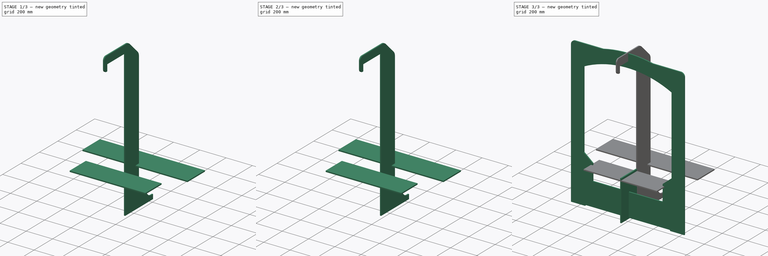
[diagram: build sequence overview — one tinted view per stage of 3, left to right]
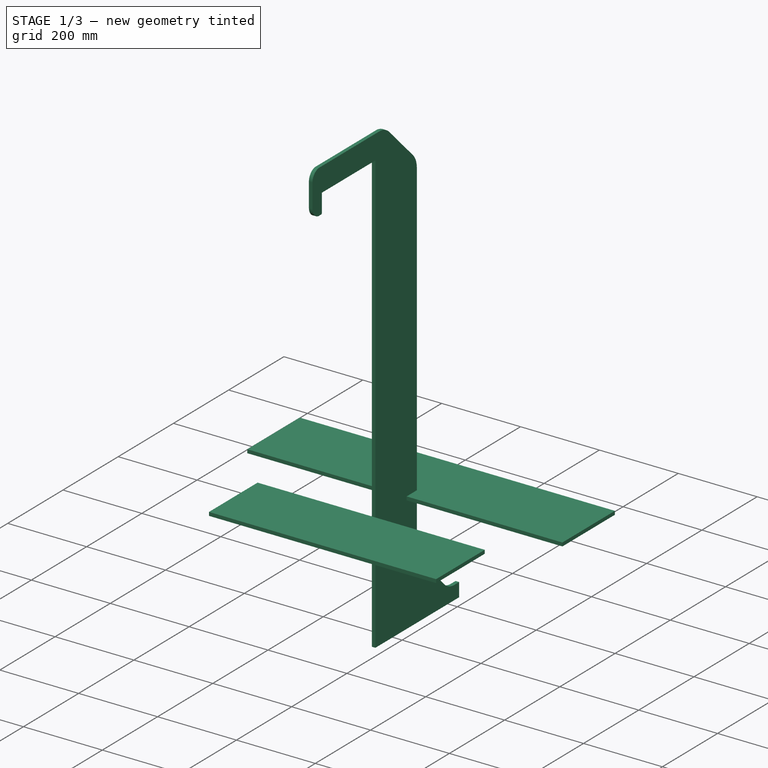
[diagram: stage 1 of 3 — iso view after this stage's code; geometry added in this stage tinted green]
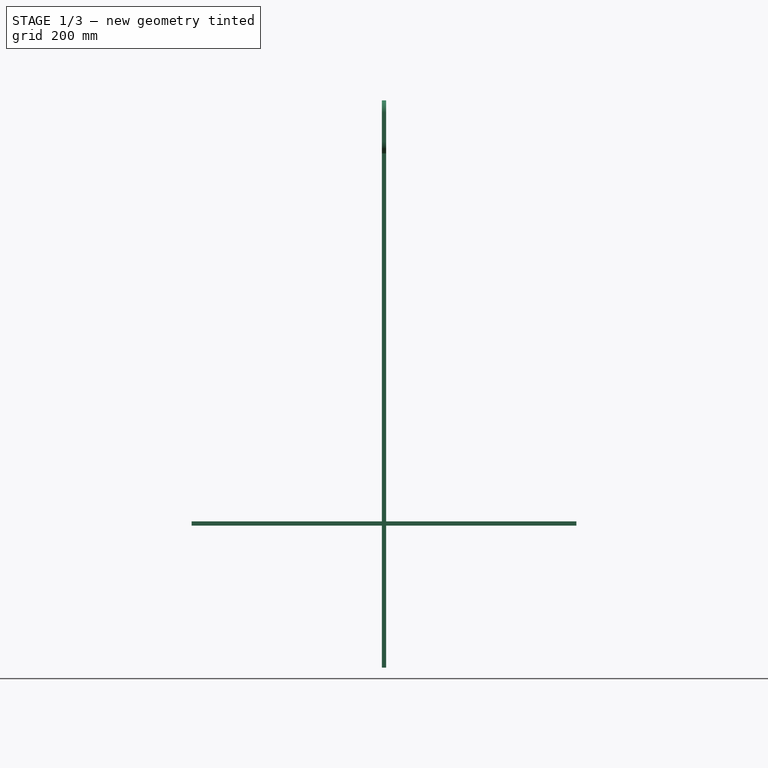
[diagram: stage 1 of 3 — front view after this stage's code; geometry added in this stage tinted green]
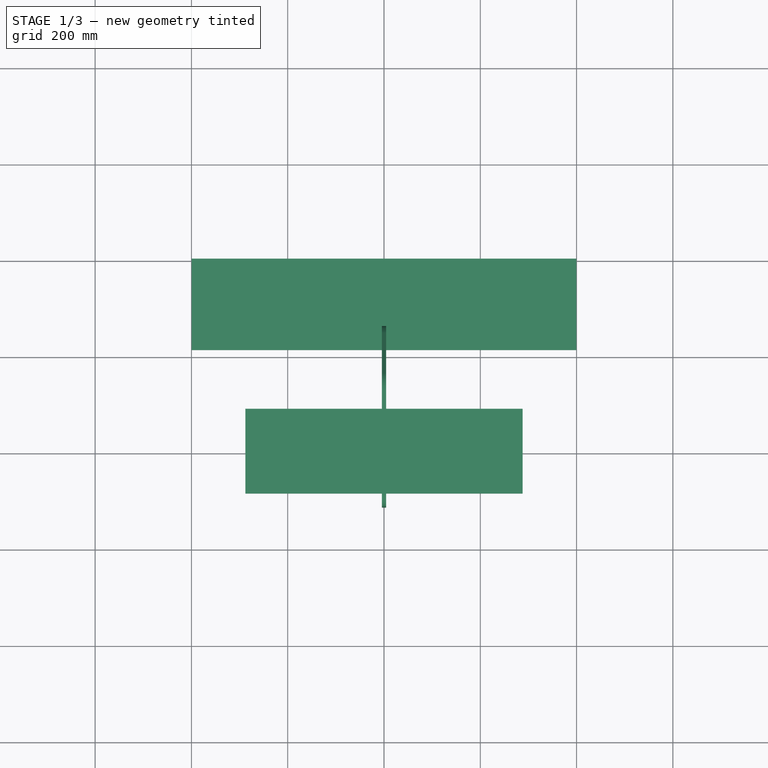
[diagram: stage 1 of 3 — top view after this stage's code; geometry added in this stage tinted green]
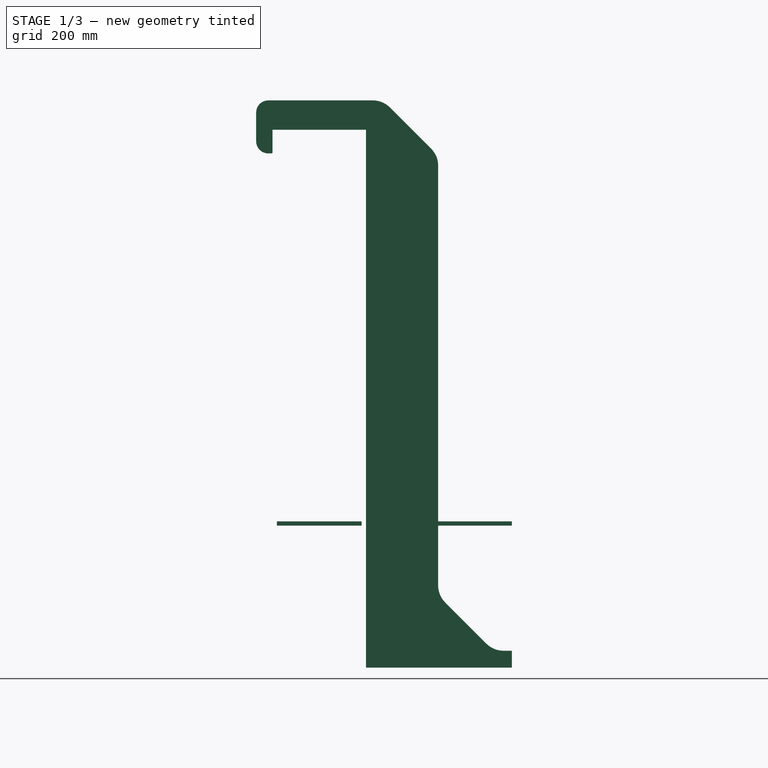
[diagram: stage 1 of 3 — right view after this stage's code; geometry added in this stage tinted green]
FCSTD DOCUMENT  (FreeCAD 0.19R)
Label: Main_Assembly
License: Creative Commons Attribution-ShareAlike
LicenseURL: http://creativecommons.org/licenses/by-sa/4.0/
objects: App::Link×14, PartDesign::CoordinateSystem×10, Sketcher::SketchObject×9, PartDesign::Pad×8, PartDesign::Body×8, App::DocumentObjectGroup×2, App::FeaturePython×1, Spreadsheet::Sheet×1, App::Part×1
note: 43 computed .brp shape members not serialized (recipe doc carries the construction recipe); baked Part::Feature solids carry a one-line shape summary decoded from their .brp
EXTERNAL_REF file=key_dimensions.FCStd obj=Spreadsheet
EXTERNAL_REF file=Cradle/Base_Assembly.FCStd obj=LCS_Origin
EXTERNAL_REF file=Cradle/Base_Assembly.FCStd obj=Model
EXTERNAL_REF file=Cradle/Swivel_Assembly.FCStd obj=LCS_Origin
EXTERNAL_REF file=Cradle/Swivel_Assembly.FCStd obj=Model
EXTERNAL_REF file=Cradle/Wing_Assembly_right.FCStd obj=LCS_Origin
EXTERNAL_REF file=Cradle/Wing_Assembly_right.FCStd obj=Model
EXTERNAL_REF file=Cradle/Wing_Assembly_left.FCStd obj=LCS_Origin
EXTERNAL_REF file=Cradle/Wing_Assembly_left.FCStd obj=Model

FEATURE [PartDesign::Body] Column_right
  Group = -> [LCS_0003,Sketch005,Pad004]
  Origin = -> Origin005
  Tip = -> Pad004
FEATURE [App::Link] Column_right001
  AssemblyType = Asm4EE
  AttachedBy = #LCS_0003
  AttachedTo = Parent Assembly#LCS_Origin
  AttachmentOffset = pos=(395,0,0) rot=(0,0,1;0rad)
  LinkPlacement = pos=(395,0,0) rot=(0,0,1;0rad)
  LinkedObject = -> Column_right
  Placement = pos=(395,0,0) rot=(0,0,1;0rad)
  expr: .Placement.Base.x = <<key_dimensions>>#<<Dimensions>>.window_width / 2 + <<key_dimensions>>#<<Dimensions>>.frame_width / 2
FEATURE [PartDesign::CoordinateSystem] LCS_0004
  AttacherType = Attacher::AttachEngine3D
  MapMode = 2
  Support = -> [X_Axis006]
FEATURE [Sketcher::SketchObject] Sketch006  label="Column_left_Sketch"
  FullyConstrained = true
  MapMode = 5
  Placement = pos=(0,0,0) rot=(0.57735,0.57735,0.57735;2.0944rad)
  Support = -> [YZ_Plane006]
  expr: Constraints[56] = <<Column_right_Sketch>>.Constraints.front_height
  expr: Constraints[50] = <<Column_right_Sketch>>.Constraints.radius_small
  expr: Constraints[34] = <<Column_right_Sketch>>.Constraints.radius_big
  expr: Constraints[45] = <<Column_right_Sketch>>.Constraints.oblique_length
  expr: Constraints[20] = <<Column_right_Sketch>>.Constraints.column_width
  expr: Constraints[65] = <<key_dimensions>>#<<Dimensions>>.rear_overhang
  expr: Constraints[23] = <<key_dimensions>>#<<Dimensions>>.center_height
  expr: Constraints[26] = <<key_dimensions>>#<<Dimensions>>.top_height - 33
  expr: Constraints[60] = <<key_dimensions>>#<<Dimensions>>.frame_depth / 2 + <<key_dimensions>>#<<Dimensions>>.MDF_thick
  expr: Constraints[25] = <<Dimensions>>.foot_height
  expr: Constraints[21] = <<key_dimensions>>#<<Dimensions>>.frame_depth / 2 + <<key_dimensions>>#<<Dimensions>>.MDF_thick
  sketch-geometry (23):
    g0: LineSegment StartX=97 StartY=-299.25 StartZ=0 EndX=97 EndY=817.75 EndZ=0
    g1: LineSegment StartX=97 StartY=817.75 StartZ=0 EndX=-97 EndY=817.75 EndZ=0
    g2: LineSegment StartX=-97 StartY=817.75 StartZ=0 EndX=-97 EndY=770.75 EndZ=0
    g3: LineSegment StartX=-99 StartY=768.75 StartZ=0 EndX=-106 EndY=768.75 EndZ=0
    g4: LineSegment StartX=-131 StartY=793.75 StartZ=0 EndX=-131 EndY=853.75 EndZ=0
    g5: LineSegment StartX=-106 StartY=878.75 StartZ=0 EndX=111.44 EndY=878.75 EndZ=0
    g6: LineSegment StartX=146.795 StartY=864.105 StartZ=0 EndX=232.355 EndY=778.545 EndZ=0
    g7: LineSegment StartX=247 StartY=743.19 StartZ=0 EndX=247 EndY=-128.69 EndZ=0
    g8: LineSegment StartX=261.645 StartY=-164.045 StartZ=0 EndX=347.205 EndY=-249.605 EndZ=0
    g9: LineSegment StartX=382.56 StartY=-264.25 StartZ=0 EndX=400 EndY=-264.25 EndZ=0
    g10: LineSegment StartX=400 StartY=-264.25 StartZ=0 EndX=400 EndY=-299.25 EndZ=0
    g11: LineSegment StartX=400 StartY=-299.25 StartZ=0 EndX=97 EndY=-299.25 EndZ=0
    g12: LineSegment StartX=97 StartY=0 StartZ=0 EndX=247 EndY=0 EndZ=0
    g13: ArcOfCircle CenterX=111.44 CenterY=828.75 CenterZ=0 NormalX=0 NormalY=0 NormalZ=1 AngleXU=0 Radius=50 StartAngle=0.785398 EndAngle=1.5708
    g14: ArcOfCircle CenterX=197 CenterY=743.19 CenterZ=0 NormalX=0 NormalY=0 NormalZ=1 AngleXU=0 Radius=50 StartAngle=-9e-16 EndAngle=0.785398
    g15: ArcOfCircle CenterX=297 CenterY=-128.69 CenterZ=0 NormalX=0 NormalY=0 NormalZ=1 AngleXU=0 Radius=50 StartAngle=3.14159 EndAngle=3.92699
    g16: ArcOfCircle CenterX=382.56 CenterY=-214.25 CenterZ=0 NormalX=0 NormalY=0 NormalZ=1 AngleXU=0 Radius=50 StartAngle=3.92699 EndAngle=4.71239
    g17: LineSegment StartX=0 StartY=878.75 StartZ=0 EndX=0 EndY=817.75 EndZ=0
    g18: ArcOfCircle CenterX=-106 CenterY=853.75 CenterZ=0 NormalX=0 NormalY=0 NormalZ=1 AngleXU=0 Radius=25 StartAngle=1.5708 EndAngle=3.14159
    g19: ArcOfCircle CenterX=-106 CenterY=793.75 CenterZ=0 NormalX=0 NormalY=0 NormalZ=1 AngleXU=0 Radius=25 StartAngle=3.14159 EndAngle=4.71239
    g20: LineSegment StartX=-131 StartY=817.75 StartZ=0 EndX=-97 EndY=817.75 EndZ=0
    g21: LineSegment StartX=-97 StartY=793.75 StartZ=0 EndX=0 EndY=793.75 EndZ=0
    g22: ArcOfCircle CenterX=-99 CenterY=770.75 CenterZ=0 NormalX=0 NormalY=0 NormalZ=1 AngleXU=0 Radius=2 StartAngle=4.71239 EndAngle=6.28319
  constraints (66):
    c: Vertical(g0)
    c: Coincident(g0,g1)
    c: Horizontal(g1)
    c: Coincident(g1,g2)
    c: Vertical(g2)
    c: Horizontal(g3)
    c: Vertical(g4)
    c: Horizontal(g5)
    c: Vertical(g7)
    c: Coincident(g9,g10)
    c: Vertical(g10)
    c: Coincident(g10,g11)
    c: Coincident(g11,g0)
    c: Horizontal(g11)
    c: Horizontal(g9)
    c: Parallel(g6,g8)
    c: Angle(g6) = -0.785398
    c: PointOnObject(g12,g0)
    c: PointOnObject(g12,g7)
    c: Horizontal(g12)
    c: DistanceX(g12,g12) = 150
    c: DistanceX(g-1,g12) = 97
    c: PointOnObject(g12,g-1)
    c: DistanceY(g0,g-1) = 299.25
    c: DistanceX(g11,g11) = 303
    c: DistanceY(g10,g10) = 35
    c: DistanceY(g0,g0) = 1117
    c: Equal(g8,g6)
    c: Tangent(g5,g13) = 1.5708
    c: Tangent(g6,g13) = 1.5708
    c: Tangent(g6,g14) = 1.5708
    c: Tangent(g7,g14) = 1.5708
    c: Tangent(g7,g15) = -1.5708
    c: Tangent(g8,g15) = -1.5708
    c: Radius(g14) = 50
    c: Equal(g13,g14)
    c: Equal(g15,g14)
    c: Tangent(g8,g16) = -1.5708
    c: Tangent(g9,g16) = -1.5708
    c: Equal(g16,g15)
    c: PointOnObject(g17,g5)
    c: PointOnObject(g17,g1)
    c: Vertical(g17)
    c: DistanceY(g17,g17) = 61
    c: PointOnObject(g17,g-2)
    c: Distance(g6) = 121
    c: Tangent(g5,g18) = 1.5708
    c: Tangent(g4,g18) = 1.5708
    c: Tangent(g4,g19) = 1.5708
    c: Tangent(g3,g19) = 1.5708
    c: Radius(g19) = 25
    c: Equal(g18,g19)
    c: PointOnObject(g20,g4)
    c: Coincident(g20,g1)
    c: Horizontal(g20)
    c: DistanceX(g20,g20) = 34
    c: DistanceY(g3,g5) = 110
    c: PointOnObject(g21,g2)
    c: PointOnObject(g21,g-2)
    c: Horizontal(g21)
    c: DistanceX(g21,g21) = 97
    c: PointOnObject(g4,g21)
    c: Tangent(g3,g22) = 1.5708
    c: Tangent(g2,g22) = 1.5708
    c: Radius(g22) = 2
    c: DistanceX(g-1,g10) = 400
FEATURE [PartDesign::Pad] Pad005
  Direction = (1,1,1)
  Length = 9
  Length2 = 100
  Midplane = true
  Placement = pos=(0,0,0) rot=(0.57735,0.57735,0.57735;2.0944rad)
  Profile = -> Sketch006
  Type = 0
  expr: Length = <<key_dimensions>>#<<Dimensions>>.MDF_thick
FEATURE [PartDesign::Body] Column_left
  Group = -> [LCS_0004,Sketch006,Pad005]
  Origin = -> Origin006
  Tip = -> Pad005
FEATURE [App::Link] Column_left001
  AssemblyType = Asm4EE
  AttachedBy = #LCS_0004
  AttachedTo = Parent Assembly#LCS_Origin
  AttachmentOffset = pos=(-395,0,0) rot=(0,0,1;0rad)
  LinkPlacement = pos=(-395,0,0) rot=(0,0,1;0rad)
  LinkedObject = -> Column_left
  Placement = pos=(-395,0,0) rot=(0,0,1;0rad)
  expr: .Placement.Base.x = -(<<key_dimensions>>#<<Dimensions>>.window_width / 2 + <<key_dimensions>>#<<Dimensions>>.frame_width / 2)
FEATURE [PartDesign::CoordinateSystem] LCS_0005
  AttacherType = Attacher::AttachEngine3D
  MapMode = 2
  Support = -> [X_Axis007]
FEATURE [PartDesign::CoordinateSystem] LCS_0006
  AttacherType = Attacher::AttachEngine3D
  MapMode = 2
  Support = -> [X_Axis008]
FEATURE [Sketcher::SketchObject] Sketch007
  FullyConstrained = true
  MapMode = 5
  Support = -> [XY_Plane007]
  expr: Constraints[9] = <<key_dimensions>>#<<Dimensions>>.frame_depth
  sketch-geometry (4):
    g0: LineSegment StartX=-288 StartY=88 StartZ=0 EndX=288 EndY=88 EndZ=0
    g1: LineSegment StartX=288 StartY=88 StartZ=0 EndX=288 EndY=-88 EndZ=0
    g2: LineSegment StartX=288 StartY=-88 StartZ=0 EndX=-288 EndY=-88 EndZ=0
    g3: LineSegment StartX=-288 StartY=-88 StartZ=0 EndX=-288 EndY=88 EndZ=0
  constraints (11):
    c: Coincident(g0,g1)
    c: Coincident(g1,g2)
    c: Coincident(g2,g3)
    c: Coincident(g3,g0)
    c: Horizontal(g0)
    c: Horizontal(g2)
    c: Vertical(g1)
    c: Vertical(g3)
    c: Symmetric(g0,g2,g-1)
    c: DistanceY(g3,g3) = 176
    c: DistanceX(g2,g2) = 576
FEATURE [PartDesign::Pad] Pad006
  Direction = (1,1,1)
  Length = 9
  Length2 = 100
  Midplane = true
  Profile = -> Sketch007
  Type = 0
  expr: Length = <<key_dimensions>>#<<Dimensions>>.MDF_thick
FEATURE [PartDesign::Body] Lid
  Group = -> [LCS_0005,Sketch007,Pad006]
  Origin = -> Origin007
  Tip = -> Pad006
FEATURE [App::Link] Lid001
  AssemblyType = Asm4EE
  AttachedBy = #LCS_0005
  AttachedTo = Parent Assembly#LCS_Origin
  AttachmentOffset = pos=(0,0,-109.25) rot=(0,0,1;0rad)
  LinkPlacement = pos=(0,0,-109.25) rot=(0,0,1;0rad)
  LinkedObject = -> Lid
  Placement = pos=(0,0,-109.25) rot=(0,0,1;0rad)
  expr: .Placement.Base.z = -(<<key_dimensions>>#<<Dimensions>>.center_height - <<key_dimensions>>#<<Dimensions>>.slider_axis_height)
FEATURE [Sketcher::SketchObject] Sketch008
  FullyConstrained = true
  MapMode = 5
  Support = -> [XY_Plane008]
  sketch-geometry (6):
    g0: LineSegment StartX=-399.5 StartY=400 StartZ=0 EndX=399.5 EndY=400 EndZ=0
    g1: LineSegment StartX=399.5 StartY=400 StartZ=0 EndX=399.5 EndY=210 EndZ=0
    g2: LineSegment StartX=399.5 StartY=210 StartZ=0 EndX=-399.5 EndY=210 EndZ=0
    g3: LineSegment StartX=-399.5 StartY=210 StartZ=0 EndX=-399.5 EndY=400 EndZ=0
    g4: GeomPoint X=0 Y=305 Z=0
    g5: GeomPoint X=0 Y=400 Z=0
  constraints (15):
    c: Coincident(g0,g1)
    c: Coincident(g1,g2)
    c: Coincident(g2,g3)
    c: Coincident(g3,g0)
    c: Horizontal(g0)
    c: Horizontal(g2)
    c: Vertical(g1)
    c: Vertical(g3)
    c: PointOnObject(g4,g-2)
    c: Symmetric(g0,g1,g4)
    c: DistanceX(g0,g0) = 799
    c: DistanceY(g1,g1) = 190
    c: PointOnObject(g5,g0)
    c: DistanceY(g-1,g5) = 400
    c: PointOnObject(g5,g-2)
FEATURE [PartDesign::Pad] Pad007
  Direction = (1,1,1)
  Length = 9
  Length2 = 100
  Midplane = true
  Profile = -> Sketch008
  Type = 0
  expr: Length = <<key_dimensions>>#<<Dimensions>>.MDF_thick
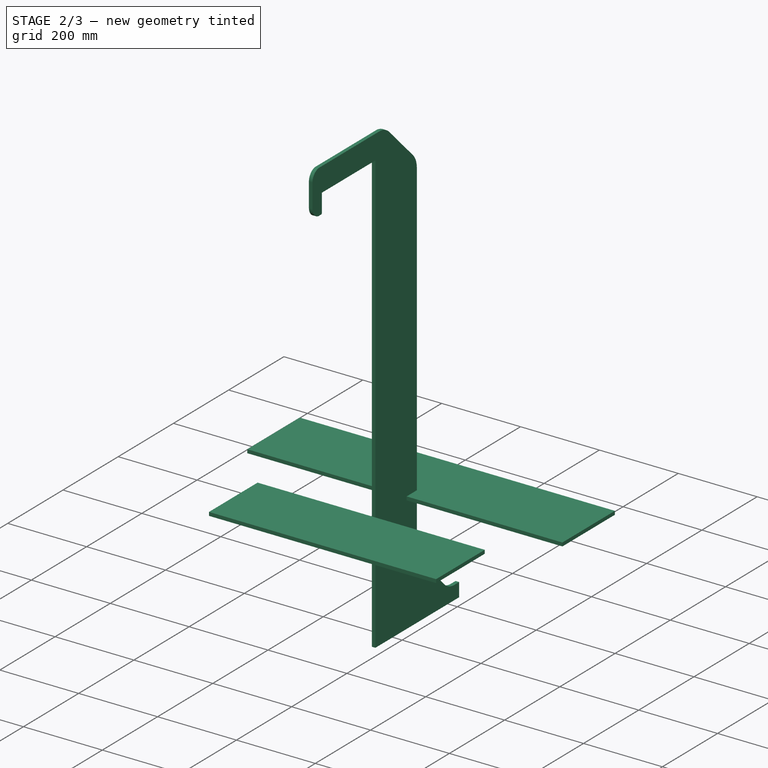
[diagram: stage 2 of 3 — iso view after this stage's code; geometry added in this stage tinted green]
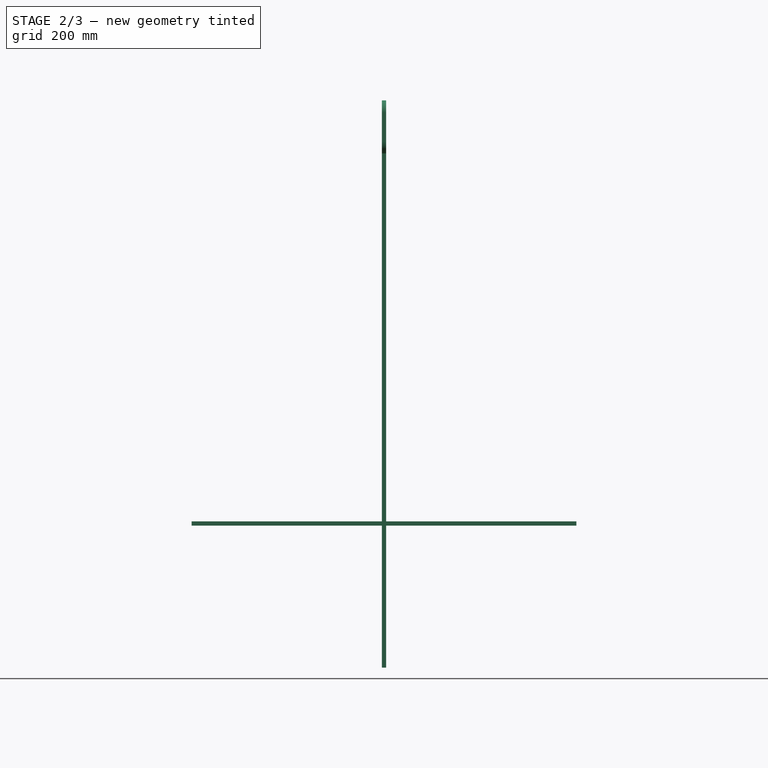
[diagram: stage 2 of 3 — front view after this stage's code; geometry added in this stage tinted green]
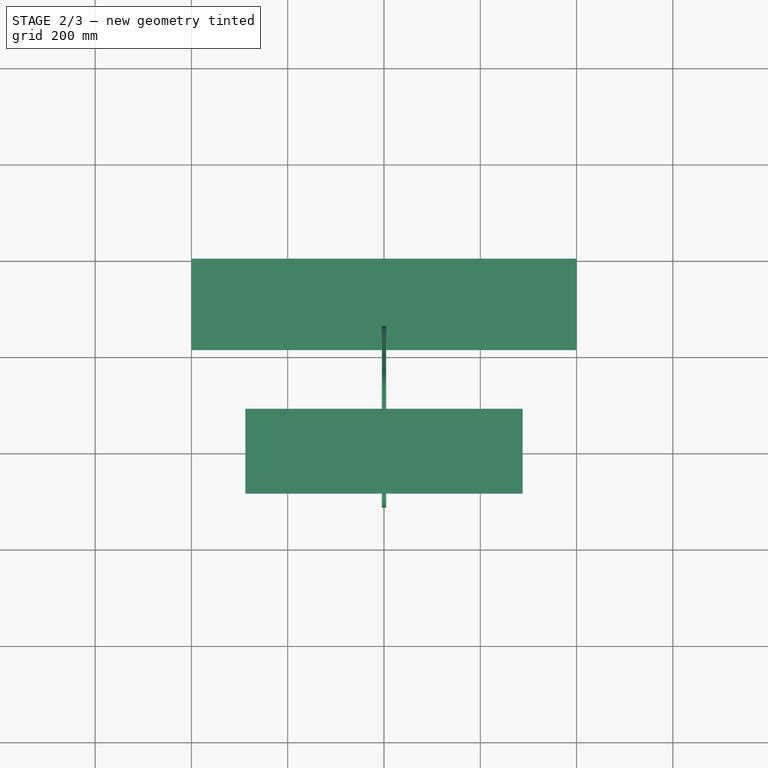
[diagram: stage 2 of 3 — top view after this stage's code; geometry added in this stage tinted green]
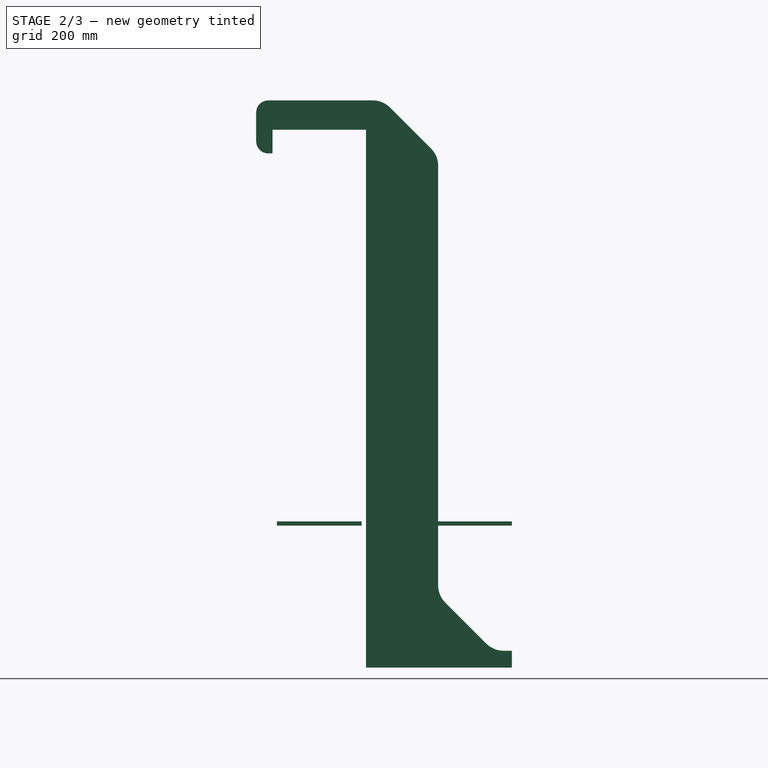
[diagram: stage 2 of 3 — right view after this stage's code; geometry added in this stage tinted green]
FEATURE [Sketcher::SketchObject] Sketch  label="Main_Sketch"
  FullyConstrained = true
  MapMode = 5
  Placement = pos=(0,0,0) rot=(1,0,0;1.5708rad)
  Support = -> [XZ_Plane001]
  sketch-geometry (8):
    g0: LineSegment StartX=-252.795 StartY=212.12 StartZ=0 EndX=0 EndY=0 EndZ=0
    g1: LineSegment StartX=0 StartY=0 StartZ=0 EndX=252.795 EndY=212.12 EndZ=0
    g2: LineSegment StartX=-275 StartY=-64.25 StartZ=0 EndX=275 EndY=-64.25 EndZ=0
    g3: LineSegment StartX=-275 StartY=-109.25 StartZ=0 EndX=275 EndY=-109.25 EndZ=0
    g4: LineSegment StartX=-126.397 StartY=106.06 StartZ=0 EndX=452.112 EndY=795.5 EndZ=0
    g5: LineSegment StartX=126.397 StartY=106.06 StartZ=0 EndX=-452.112 EndY=795.5 EndZ=0
    g6: LineSegment StartX=-445 StartY=-299.25 StartZ=0 EndX=445 EndY=-299.25 EndZ=0
    g7: ArcOfCircle CenterX=0 CenterY=0 CenterZ=0 NormalX=0 NormalY=0 NormalZ=1 AngleXU=0 Radius=769.25 StartAngle=1.10572 EndAngle=2.03587
  constraints (24):
    c: Coincident(g0,g-1)
    c: Distance(g0) = 330
    c: Angle(g-2,g0) = 0.872665
    c: Coincident(g1,g-1)
    c: Symmetric(g0,g1,g-2)
    c: DistanceY(g2,g-1) = 64.25
    c: DistanceY(g3,g2) = 45
    c: Equal(g3,g2)
    c: Symmetric(g3,g3,g-2)
    c: DistanceX(g3,g3) = 550
    c: Symmetric(g2,g2,g-2)
    c: Perpendicular(g0,g4)
    c: Symmetric(g0,g-1,g4)
    c: Distance(g4) = 900
    c: Equal(g4,g5)
    c: Perpendicular(g1,g5)
    c: Symmetric(g-1,g1,g5)
    c: DistanceY(g6,g-1) = 299.25
    c: DistanceX(g6,g6) = 890
    c: Symmetric(g6,g6,g-2)
    c: Coincident(g7,g-1)
    c: Radius(g7) = 769.25
    c: Symmetric(g7,g7,g-2)
    c: DistanceX(g7,g7) = 690
FEATURE [PartDesign::CoordinateSystem] LCS_Origin
  AttacherType = Attacher::AttachEngine3D
  MapMode = 2
  Support = -> [X_Axis001]
FEATURE [App::DocumentObjectGroup] Constraints
FEATURE [App::FeaturePython] Variables  # WARN: FeaturePython — macro-defined, semantics opaque (R4)
  cradle_horizontal_movement = 6
  cradle_swivel = 0
  wings_clearance = -50
FEATURE [Sketcher::SketchObject] Sketch001  label="FrontFrame_Sketch"
  FullyConstrained = true
  MapMode = 5
  Placement = pos=(0,0,0) rot=(1,0,0;1.5708rad)
  Support = -> [XZ_Plane]
  expr: .Constraints.height_base_B = 318mm
  expr: Constraints[70] = <<key_dimensions>>#<<Dimensions>>.cradle_base
  expr: Constraints[22] = <<key_dimensions>>#<<Dimensions>>.window_width
  expr: Constraints[68] = <<key_dimensions>>#<<Dimensions>>.slider_axis_height
  expr: Constraints[16] = <<key_dimensions>>#<<Dimensions>>.center_height
  expr: Constraints[33] = <<key_dimensions>>#<<Dimensions>>.top_height
  expr: Constraints[2] = 90 - <<key_dimensions>>#<<Dimensions>>.cradle_tilting
  sketch-geometry (26):
    g0: LineSegment StartX=-252.795 StartY=212.12 StartZ=0 EndX=0 EndY=0 EndZ=0
    g1: LineSegment StartX=0 StartY=0 StartZ=0 EndX=252.795 EndY=212.12 EndZ=0
    g2: LineSegment StartX=-275 StartY=-64.25 StartZ=0 EndX=275 EndY=-64.25 EndZ=0
    g3: LineSegment StartX=-275 StartY=-109.25 StartZ=0 EndX=275 EndY=-109.25 EndZ=0
    g4: LineSegment StartX=-126.397 StartY=106.06 StartZ=0 EndX=452.112 EndY=795.5 EndZ=0
    g5: LineSegment StartX=126.397 StartY=106.06 StartZ=0 EndX=-452.112 EndY=795.5 EndZ=0
    g6: LineSegment StartX=-445 StartY=-299.25 StartZ=0 EndX=-334.5 EndY=-299.25 EndZ=0
    g7: ArcOfCircle CenterX=0 CenterY=0 CenterZ=0 NormalX=0 NormalY=0 NormalZ=1 AngleXU=0 Radius=769.25 StartAngle=1.10572 EndAngle=2.03587
    g8: LineSegment StartX=-445 StartY=-299.25 StartZ=0 EndX=-445 EndY=820.75 EndZ=0
    g9: LineSegment StartX=445 StartY=-299.25 StartZ=0 EndX=445 EndY=820.75 EndZ=0
    g10: ArcOfCircle CenterX=0 CenterY=0 CenterZ=0 NormalX=0 NormalY=0 NormalZ=1 AngleXU=0 Radius=872.75 StartAngle=1.34579 EndAngle=1.7958
    g11: LineSegment StartX=-415 StartY=850.75 StartZ=0 EndX=-194.723 EndY=850.75 EndZ=0
    g12: LineSegment StartX=194.723 StartY=850.75 StartZ=0 EndX=415 EndY=850.75 EndZ=0
    g13: GeomPoint X=-445 Y=850.75 Z=0
    g14: ArcOfCircle CenterX=-415 CenterY=820.75 CenterZ=0 NormalX=0 NormalY=0 NormalZ=1 AngleXU=0 Radius=30 StartAngle=1.5708 EndAngle=3.14159
    g15: ArcOfCircle CenterX=415 CenterY=820.75 CenterZ=0 NormalX=0 NormalY=0 NormalZ=1 AngleXU=0 Radius=30 StartAngle=1.4e-15 EndAngle=1.5708
    g16: LineSegment StartX=-345 StartY=687.547 StartZ=0 EndX=-345 EndY=77.487 EndZ=0
    g17: LineSegment StartX=-345 StartY=77.487 StartZ=0 EndX=-275 EndY=18.75 EndZ=0
    g18: LineSegment StartX=-275 StartY=18.75 StartZ=0 EndX=-275 EndY=-109.25 EndZ=0
    g19: LineSegment StartX=275 StartY=-109.25 StartZ=0 EndX=275 EndY=18.75 EndZ=0
    g20: LineSegment StartX=275 StartY=18.75 StartZ=0 EndX=345 EndY=77.487 EndZ=0
    g21: LineSegment StartX=345 StartY=77.487 StartZ=0 EndX=345 EndY=687.547 EndZ=0
    g22: ArcOfCircle CenterX=-327.5 CenterY=-299.25 CenterZ=0 NormalX=0 NormalY=0 NormalZ=1 AngleXU=0 Radius=7 StartAngle=1.5708 EndAngle=3.14159
    g23: ArcOfCircle CenterX=327.5 CenterY=-299.25 CenterZ=0 NormalX=0 NormalY=0 NormalZ=1 AngleXU=0 Radius=7 StartAngle=7.8e-15 EndAngle=1.5708
    g24: LineSegment StartX=-327.5 StartY=-292.25 StartZ=0 EndX=327.5 EndY=-292.25 EndZ=0
    g25: LineSegment StartX=334.5 StartY=-299.25 StartZ=0 EndX=445 EndY=-299.25 EndZ=0
  constraints (72):
    c: Coincident(g0,g-1)
    c: Distance(g0) = 330
    c: Angle(g-2,g0) = 0.872665
    c: Coincident(g1,g-1)
    c: Symmetric(g0,g1,g-2)
    c: DistanceY(g2,g-1) = 64.25
    c: Equal(g3,g2)
    c: Symmetric(g3,g3,g-2)
    c: DistanceX(g3,g3) = 550  'lip_width'
    c: Symmetric(g2,g2,g-2)
    c: Perpendicular(g0,g4)
    c: Symmetric(g0,g-1,g4)
    c: Distance(g4) = 900
    c: Equal(g4,g5)
    c: Perpendicular(g1,g5)
    c: Symmetric(g-1,g1,g5)
    c: DistanceY(g25,g-1) = 299.25
    c: DistanceX(g6,g25) = 890
    c: Symmetric(g6,g25,g-2)
    c: Coincident(g7,g-1)
    c: Radius(g7) = 769.25
    c: Symmetric(g7,g7,g-2)
    c: DistanceX(g7,g7) = 690
    c: Coincident(g8,g6)
    c: Vertical(g8)
    c: Coincident(g9,g25)
    c: Vertical(g9)
    c: Coincident(g10,g-1)
    c: Coincident(g11,g10)
    c: Coincident(g12,g10)
    c: Tangent(g11,g12)
    c: Horizontal(g11)
    c: PointOnObject(g13,g11)
    c: DistanceY(g6,g13) = 1150
    c: Tangent(g8,g14) = 1.5708
    c: Tangent(g11,g14) = 1.5708
    c: Tangent(g12,g15) = 1.5708
    c: Tangent(g9,g15) = -1.5708
    c: Equal(g15,g14)
    c: Radius(g15) = 30
    c: Radius(g10) = 872.75
    c: Coincident(g16,g7)
    c: Vertical(g16)
    c: Coincident(g16,g17)
    c: Coincident(g17,g18)
    c: Coincident(g18,g3)
    c: Coincident(g3,g19)
    c: Vertical(g19)
    c: Coincident(g19,g20)
    c: Coincident(g20,g21)
    c: Coincident(g21,g7)
    c: Vertical(g21)
    c: Vertical(g18)
    c: Equal(g18,g19)
    c: Parallel(g20,g1)
    c: Parallel(g17,g0)
    c: DistanceY(g6,g17) = 318  'height_base_B'
    c: PointOnObject(g22,g6)
    c: Equal(g23,g22)
    c: Coincident(g6,g22)
    c: Coincident(g25,g23)
    c: Tangent(g6,g25)
    c: Radius(g22) = 7  'foot_radius'
    c: DistanceX(g6,g23) = 669  'foot_width'
    c: Tangent(g24,g22) = 1.5708
    c: Tangent(g24,g23) = 1.5708
    c: Symmetric(g22,g23,g-2)
    c: PointOnObject(g13,g8)
    c: DistanceY(g9,g3) = 190
    c: DistanceY(g3,g7) = 109.25
    c: DistanceY(g9,g2) = 235
    c: DistanceY(g3,g2) = 45
FEATURE [PartDesign::Pad] Pad
  Direction = (1,1,1)
  Length = 9
  Length2 = 100
  Midplane = true
  Placement = pos=(0,0,0) rot=(1,0,0;1.5708rad)
  Profile = -> Sketch001
  Type = 0
  expr: Length = <<key_dimensions>>#<<Dimensions>>.MDF_thick
FEATURE [PartDesign::CoordinateSystem] LCS_Front_1
  AttacherType = Attacher::AttachEngine3D
  MapMode = 5
  Support = -> [XY_Plane]
FEATURE [PartDesign::Body] Body  label="Front"
  Group = -> [Sketch001,Pad,LCS_Front_1]
  Origin = -> Origin
  Tip = -> Pad
FEATURE [App::Link] Front  label="Front001"
  AssemblyType = Asm4EE
  AttachedBy = #LCS_Front_1
  AttachedTo = Parent Assembly#LCS_Origin
  AttachmentOffset = pos=(0,-92.5,0) rot=(0,0,1;0rad)
  LinkPlacement = pos=(0,92.5,0) rot=(0,0,1;0rad)
  LinkedObject = -> Body
  Placement = pos=(0,92.5,0) rot=(0,0,1;0rad)
  expr: .Placement.Base.y = <<key_dimensions>>#<<Dimensions>>.frame_depth / 2 + <<key_dimensions>>#<<Dimensions>>.MDF_thick / 2
FEATURE [PartDesign::CoordinateSystem] LCS_0
  AttacherType = Attacher::AttachEngine3D
  MapMode = 2
  Support = -> [X_Axis002]
FEATURE [Sketcher::SketchObject] Sketch002  label="BackFrame_Sketch"
  FullyConstrained = true
  MapMode = 5
  Placement = pos=(0,0,0) rot=(1,0,0;1.5708rad)
  Support = -> [XZ_Plane002]
  expr: Constraints[57] = <<FrontFrame_Sketch>>.Constraints.height_base_B
  expr: Constraints[2] = 90 - <<key_dimensions>>#<<Dimensions>>.cradle_tilting
  expr: Constraints[66] = <<FrontFrame_Sketch>>.Constraints.foot_width
  expr: Constraints[17] = <<key_dimensions>>#<<Dimensions>>.window_width + <<key_dimensions>>#<<Dimensions>>.frame_width * 2
  expr: Constraints[22] = <<key_dimensions>>#<<Dimensions>>.window_width
  expr: Constraints[70] = <<key_dimensions>>#<<Dimensions>>.cradle_base
  expr: Constraints[33] = <<key_dimensions>>#<<Dimensions>>.top_height
  expr: Constraints[69] = <<key_dimensions>>#<<Dimensions>>.slider_axis_height
  expr: Constraints[8] = <<FrontFrame_Sketch>>.Constraints.lip_width
  expr: Constraints[16] = <<key_dimensions>>#<<Dimensions>>.center_height
  sketch-geometry (26):
    g0: LineSegment StartX=-252.795 StartY=212.12 StartZ=0 EndX=0 EndY=0 EndZ=0
    g1: LineSegment StartX=0 StartY=0 StartZ=0 EndX=252.795 EndY=212.12 EndZ=0
    g2: LineSegment StartX=-275 StartY=-64.25 StartZ=0 EndX=275 EndY=-64.25 EndZ=0
    g3: LineSegment StartX=-275 StartY=-109.25 StartZ=0 EndX=275 EndY=-109.25 EndZ=0
    g4: LineSegment StartX=-126.397 StartY=106.06 StartZ=0 EndX=452.112 EndY=795.5 EndZ=0
    g5: LineSegment StartX=126.397 StartY=106.06 StartZ=0 EndX=-452.112 EndY=795.5 EndZ=0
    g6: LineSegment StartX=-445 StartY=-299.25 StartZ=0 EndX=-334.5 EndY=-299.25 EndZ=0
    g7: ArcOfCircle CenterX=0 CenterY=0 CenterZ=0 NormalX=0 NormalY=0 NormalZ=1 AngleXU=0 Radius=769.25 StartAngle=1.10572 EndAngle=2.03587
    g8: LineSegment StartX=-445 StartY=-299.25 StartZ=0 EndX=-445 EndY=820.75 EndZ=0
    g9: LineSegment StartX=445 StartY=-299.25 StartZ=0 EndX=445 EndY=820.75 EndZ=0
    g10: ArcOfCircle CenterX=0 CenterY=0 CenterZ=0 NormalX=0 NormalY=0 NormalZ=1 AngleXU=0 Radius=872.75 StartAngle=1.34579 EndAngle=1.7958
    g11: LineSegment StartX=-415 StartY=850.75 StartZ=0 EndX=-194.723 EndY=850.75 EndZ=0
    g12: LineSegment StartX=194.723 StartY=850.75 StartZ=0 EndX=415 EndY=850.75 EndZ=0
    g13: GeomPoint X=-445 Y=850.75 Z=0
    g14: ArcOfCircle CenterX=-415 CenterY=820.75 CenterZ=0 NormalX=0 NormalY=0 NormalZ=1 AngleXU=0 Radius=30 StartAngle=1.5708 EndAngle=3.14159
    g15: ArcOfCircle CenterX=415 CenterY=820.75 CenterZ=0 NormalX=0 NormalY=0 NormalZ=1 AngleXU=0 Radius=30 StartAngle=9e-16 EndAngle=1.5708
    g16: LineSegment StartX=-345 StartY=687.547 StartZ=0 EndX=-345 EndY=77.487 EndZ=0
    g17: LineSegment StartX=-345 StartY=77.487 StartZ=0 EndX=-275 EndY=18.75 EndZ=0
    g18: LineSegment StartX=-275 StartY=18.75 StartZ=0 EndX=-275 EndY=-109.25 EndZ=0
    g19: LineSegment StartX=275 StartY=-109.25 StartZ=0 EndX=275 EndY=18.75 EndZ=0
    g20: LineSegment StartX=275 StartY=18.75 StartZ=0 EndX=345 EndY=77.487 EndZ=0
    g21: LineSegment StartX=345 StartY=77.487 StartZ=0 EndX=345 EndY=687.547 EndZ=0
    g22: ArcOfCircle CenterX=-327.5 CenterY=-299.25 CenterZ=0 NormalX=0 NormalY=0 NormalZ=1 AngleXU=0 Radius=7 StartAngle=1.5708 EndAngle=3.14159
    g23: ArcOfCircle CenterX=327.5 CenterY=-299.25 CenterZ=0 NormalX=0 NormalY=0 NormalZ=1 AngleXU=0 Radius=7 StartAngle=3.2e-15 EndAngle=1.5708
    g24: LineSegment StartX=-327.5 StartY=-292.25 StartZ=0 EndX=327.5 EndY=-292.25 EndZ=0
    g25: LineSegment StartX=334.5 StartY=-299.25 StartZ=0 EndX=445 EndY=-299.25 EndZ=0
  constraints (71):
    c: Coincident(g0,g-1)
    c: Distance(g0) = 330
    c: Angle(g-2,g0) = 0.872665
    c: Coincident(g1,g-1)
    c: Symmetric(g0,g1,g-2)
    c: DistanceY(g2,g-1) = 64.25
    c: Equal(g3,g2)
    c: Symmetric(g3,g3,g-2)
    c: DistanceX(g3,g3) = 550
    c: Symmetric(g2,g2,g-2)
    c: Perpendicular(g0,g4)
    c: Symmetric(g0,g-1,g4)
    c: Distance(g4) = 900
    c: Equal(g4,g5)
    c: Perpendicular(g1,g5)
    c: Symmetric(g-1,g1,g5)
    c: DistanceY(g25,g-1) = 299.25
    c: DistanceX(g6,g25) = 890
    c: Symmetric(g6,g25,g-2)
    c: Coincident(g7,g-1)
    c: Radius(g7) = 769.25
    c: Symmetric(g7,g7,g-2)
    c: DistanceX(g7,g7) = 690
    c: Coincident(g8,g6)
    c: Vertical(g8)
    c: Coincident(g9,g25)
    c: Vertical(g9)
    c: Coincident(g10,g-1)
    c: Coincident(g11,g10)
    c: Coincident(g12,g10)
    c: Tangent(g11,g12)
    c: Horizontal(g11)
    c: PointOnObject(g13,g11)
    c: DistanceY(g6,g13) = 1150
    c: Tangent(g8,g14) = 1.5708
    c: Tangent(g11,g14) = 1.5708
    c: Tangent(g12,g15) = 1.5708
    c: Tangent(g9,g15) = -1.5708
    c: Equal(g15,g14)
    c: Radius(g15) = 30
    c: Radius(g10) = 872.75
    c: Coincident(g16,g7)
    c: Vertical(g16)
    c: Coincident(g16,g17)
    c: Coincident(g17,g18)
    c: Coincident(g18,g3)
    c: Coincident(g3,g19)
    c: Vertical(g19)
    c: Coincident(g19,g20)
    c: Coincident(g20,g21)
    c: Coincident(g21,g7)
    c: Vertical(g21)
    c: Vertical(g18)
    c: Equal(g18,g19)
    c: DistanceY(g19,g10) = 109.25
    c: Parallel(g20,g1)
    c: Parallel(g17,g0)
    c: DistanceY(g6,g17) = 318
    c: PointOnObject(g22,g6)
    c: Horizontal(g24)
    c: Tangent(g24,g23) = 1.5708
    c: Tangent(g24,g22) = 1.5708
    c: Coincident(g6,g22)
    c: Coincident(g25,g23)
    c: Tangent(g6,g25)
    c: Symmetric(g22,g23,g-2)
    c: DistanceX(g6,g23) = 669
    c: Radius(g23) = 7
    c: PointOnObject(g13,g8)
    c: DistanceY(g9,g3) = 190
    c: DistanceY(g9,g2) = 235
FEATURE [PartDesign::Pad] Pad001
  Direction = (1,1,1)
  Length = 9
  Length2 = 100
  Midplane = true
  Placement = pos=(0,0,0) rot=(1,0,0;1.5708rad)
  Profile = -> Sketch002
  Type = 0
  expr: Length = <<key_dimensions>>#<<Dimensions>>.MDF_thick
FEATURE [PartDesign::Body] Back
  Group = -> [LCS_0,Sketch002,Pad001]
  Origin = -> Origin002
  Tip = -> Pad001
FEATURE [App::Link] Back001
  AssemblyType = Asm4EE
  AttachedBy = #LCS_0
  AttachedTo = Parent Assembly#LCS_Origin
  AttachmentOffset = pos=(0,92.5,0) rot=(0,0,1;0rad)
  LinkPlacement = pos=(0,-92.5,0) rot=(0,0,1;0rad)
  LinkedObject = -> Back
  Placement = pos=(0,-92.5,0) rot=(0,0,1;0rad)
  expr: .Placement.Base.y = -(<<key_dimensions>>#<<Dimensions>>.frame_depth / 2 + <<key_dimensions>>#<<Dimensions>>.MDF_thick / 2)
FEATURE [PartDesign::CoordinateSystem] LCS_0001
  AttacherType = Attacher::AttachEngine3D
  MapMode = 2
  Support = -> [X_Axis003]
FEATURE [Sketcher::SketchObject] Sketch003  label="Side_Sketch"
  FullyConstrained = true
  MapMode = 5
  Placement = pos=(0,0,0) rot=(0.57735,0.57735,0.57735;2.0944rad)
  Support = -> [YZ_Plane003]
  sketch-geometry (6):
    g0: LineSegment StartX=-88 StartY=18.75 StartZ=0 EndX=88 EndY=18.75 EndZ=0
    g1: LineSegment StartX=88 StartY=18.75 StartZ=0 EndX=88 EndY=-299.25 EndZ=0
    g2: LineSegment StartX=88 StartY=-299.25 StartZ=0 EndX=-88 EndY=-299.25 EndZ=0
    g3: LineSegment StartX=-88 StartY=-299.25 StartZ=0 EndX=-88 EndY=18.75 EndZ=0
    g4: GeomPoint X=0 Y=-299.25 Z=0
    g5: LineSegment StartX=0 StartY=18.75 StartZ=0 EndX=0 EndY=-299.25 EndZ=0
  constraints (17):
    c: Coincident(g0,g1)
    c: Coincident(g1,g2)
    c: Coincident(g2,g3)
    c: Coincident(g3,g0)
    c: Horizontal(g0)
    c: Horizontal(g2)
    c: Vertical(g1)
    c: Vertical(g3)
    c: DistanceX(g0,g0) = 176
    c: DistanceY(g1,g-1) = 299.25
    c: Symmetric(g2,g1,g4)
    c: PointOnObject(g4,g-2)
    c: PointOnObject(g5,g0)
    c: PointOnObject(g5,g2)
    c: Vertical(g5)
    c: DistanceY(g5,g5) = 318
    c: PointOnObject(g5,g-2)
FEATURE [PartDesign::Pad] Pad002
  Direction = (1,1,1)
  Length = 9
  Length2 = 100
  Placement = pos=(0,0,0) rot=(0.57735,0.57735,0.57735;2.0944rad)
  Profile = -> Sketch003
  Type = 0
  expr: Length = <<key_dimensions>>#<<Dimensions>>.MDF_thick
FEATURE [PartDesign::Body] Side
  Group = -> [LCS_0001,Sketch003,Pad002]
  Origin = -> Origin003
  Tip = -> Pad002
FEATURE [App::Link] Side001  label="Side_right"
  AssemblyType = Asm4EE
  AttachedBy = #LCS_0001
  AttachedTo = Parent Assembly#LCS_Origin
  AttachmentOffset = pos=(345,0,0) rot=(0,0,1;3.14159rad)
  LinkPlacement = pos=(345,0,0) rot=(0,0,1;3.14159rad)
  LinkedObject = -> Side
  Placement = pos=(345,0,0) rot=(0,0,1;3.14159rad)
  expr: .Placement.Base.x = <<key_dimensions>>#<<Dimensions>>.window_width / 2
FEATURE [App::Link] Side002  label="Side_left"
  AssemblyType = Asm4EE
  AttachedBy = #LCS_0001
  AttachedTo = Parent Assembly#LCS_Origin
  AttachmentOffset = pos=(-345,0,0) rot=(0,0,1;0rad)
  LinkPlacement = pos=(-345,0,0) rot=(0,0,1;0rad)
  LinkedObject = -> Side
  Placement = pos=(-345,0,0) rot=(0,0,1;0rad)
  expr: .Placement.Base.x = -(<<key_dimensions>>#<<Dimensions>>.window_width / 2)
FEATURE [PartDesign::CoordinateSystem] LCS_0002
  AttacherType = Attacher::AttachEngine3D
  MapMode = 2
  Support = -> [X_Axis004]
FEATURE [Sketcher::SketchObject] Sketch004  label="Side_Reinforcement_Sketch"
  FullyConstrained = true
  MapMode = 5
  Support = -> [XY_Plane004]
  expr: Constraints[8] = <<key_dimensions>>#<<Dimensions>>.frame_depth
  sketch-geometry (5):
    g0: LineSegment StartX=-50 StartY=88 StartZ=0 EndX=50 EndY=88 EndZ=0
    g1: LineSegment StartX=50 StartY=88 StartZ=0 EndX=50 EndY=-88 EndZ=0
    g2: LineSegment StartX=50 StartY=-88 StartZ=0 EndX=-50 EndY=-88 EndZ=0
    g3: LineSegment StartX=-50 StartY=-88 StartZ=0 EndX=-50 EndY=88 EndZ=0
    g4: LineSegment StartX=-50 StartY=0 StartZ=0 EndX=50 EndY=0 EndZ=0
  constraints (15):
    c: Coincident(g0,g1)
    c: Coincident(g1,g2)
    c: Coincident(g2,g3)
    c: Coincident(g3,g0)
    c: Horizontal(g0)
    c: Horizontal(g2)
    c: Vertical(g1)
    c: Vertical(g3)
    c: DistanceY(g3,g3) = 176
    c: Symmetric(g0,g2,g-1)
    c: PointOnObject(g4,g3)
    c: PointOnObject(g4,g1)
    c: Horizontal(g4)
    c: DistanceX(g4,g4) = 100
    c: PointOnObject(g4,g-1)
FEATURE [PartDesign::Pad] Pad003
  Direction = (1,1,1)
  Length = 9
  Length2 = 100
  Midplane = true
  Profile = -> Sketch004
  Type = 0
  expr: Length = <<key_dimensions>>#<<Dimensions>>.MDF_thick
FEATURE [PartDesign::Body] Side_Reinforcement
  Group = -> [LCS_0002,Sketch004,Pad003]
  Origin = -> Origin004
  Tip = -> Pad003
FEATURE [App::Link] Side_Reinforcement001  label="Side_right_Reinforcement"
  AssemblyType = Asm4EE
  AttachedBy = #LCS_0002
  AttachedTo = Parent Assembly#LCS_Origin
  AttachmentOffset = pos=(395,0,-121.25) rot=(0,0,1;0rad)
  LinkPlacement = pos=(395,0,-121.25) rot=(0,0,1;0rad)
  LinkedObject = -> Side_Reinforcement
  Placement = pos=(395,0,-121.25) rot=(0,0,1;0rad)
  expr: .Placement.Base.z = -(<<key_dimensions>>#<<Dimensions>>.center_height - 178)
  expr: .Placement.Base.x = <<key_dimensions>>#<<Dimensions>>.window_width / 2 + <<key_dimensions>>#<<Dimensions>>.frame_width / 2
FEATURE [App::Link] Side_Reinforcement002  label="Side_left_Reinforcement"
  AssemblyType = Asm4EE
  AttachedBy = #LCS_0002
  AttachedTo = Parent Assembly#LCS_Origin
  AttachmentOffset = pos=(-395,0,-121.25) rot=(0,0,1;0rad)
  LinkPlacement = pos=(-395,0,-121.25) rot=(0,0,1;0rad)
  LinkedObject = -> Side_Reinforcement
  Placement = pos=(-395,0,-121.25) rot=(0,0,1;0rad)
  expr: .Placement.Base.z = -(<<key_dimensions>>#<<Dimensions>>.center_height - 178)
  expr: .Placement.Base.x = -(<<key_dimensions>>#<<Dimensions>>.window_width / 2 + <<key_dimensions>>#<<Dimensions>>.frame_width / 2)
FEATURE [PartDesign::CoordinateSystem] LCS_0003
  AttacherType = Attacher::AttachEngine3D
  MapMode = 2
  Support = -> [X_Axis005]
FEATURE [Sketcher::SketchObject] Sketch005  label="Column_right_Sketch"
  FullyConstrained = true
  MapMode = 5
  Placement = pos=(0,0,0) rot=(0.57735,0.57735,0.57735;2.0944rad)
  Support = -> [YZ_Plane005]
  expr: Constraints[25] = <<Dimensions>>.foot_height
  expr: Constraints[21] = <<key_dimensions>>#<<Dimensions>>.frame_depth / 2 + <<key_dimensions>>#<<Dimensions>>.MDF_thick
  expr: Constraints[26] = <<key_dimensions>>#<<Dimensions>>.top_height - 33
  expr: Constraints[60] = <<key_dimensions>>#<<Dimensions>>.frame_depth / 2 + <<key_dimensions>>#<<Dimensions>>.MDF_thick
  expr: Constraints[23] = <<key_dimensions>>#<<Dimensions>>.center_height
  expr: Constraints[65] = <<key_dimensions>>#<<Dimensions>>.rear_overhang
  sketch-geometry (23):
    g0: LineSegment StartX=97 StartY=-299.25 StartZ=0 EndX=97 EndY=817.75 EndZ=0
    g1: LineSegment StartX=97 StartY=817.75 StartZ=0 EndX=-97 EndY=817.75 EndZ=0
    g2: LineSegment StartX=-97 StartY=817.75 StartZ=0 EndX=-97 EndY=770.75 EndZ=0
    g3: LineSegment StartX=-99 StartY=768.75 StartZ=0 EndX=-106 EndY=768.75 EndZ=0
    g4: LineSegment StartX=-131 StartY=793.75 StartZ=0 EndX=-131 EndY=853.75 EndZ=0
    g5: LineSegment StartX=-106 StartY=878.75 StartZ=0 EndX=111.44 EndY=878.75 EndZ=0
    g6: LineSegment StartX=146.795 StartY=864.105 StartZ=0 EndX=232.355 EndY=778.545 EndZ=0
    g7: LineSegment StartX=247 StartY=743.19 StartZ=0 EndX=247 EndY=-128.69 EndZ=0
    g8: LineSegment StartX=261.645 StartY=-164.045 StartZ=0 EndX=347.205 EndY=-249.605 EndZ=0
    g9: LineSegment StartX=382.56 StartY=-264.25 StartZ=0 EndX=400 EndY=-264.25 EndZ=0
    g10: LineSegment StartX=400 StartY=-264.25 StartZ=0 EndX=400 EndY=-299.25 EndZ=0
    g11: LineSegment StartX=400 StartY=-299.25 StartZ=0 EndX=97 EndY=-299.25 EndZ=0
    g12: LineSegment StartX=97 StartY=0 StartZ=0 EndX=247 EndY=0 EndZ=0
    g13: ArcOfCircle CenterX=111.44 CenterY=828.75 CenterZ=0 NormalX=0 NormalY=0 NormalZ=1 AngleXU=0 Radius=50 StartAngle=0.785398 EndAngle=1.5708
    g14: ArcOfCircle CenterX=197 CenterY=743.19 CenterZ=0 NormalX=0 NormalY=0 NormalZ=1 AngleXU=0 Radius=50 StartAngle=-9e-16 EndAngle=0.785398
    g15: ArcOfCircle CenterX=297 CenterY=-128.69 CenterZ=0 NormalX=0 NormalY=0 NormalZ=1 AngleXU=0 Radius=50 StartAngle=3.14159 EndAngle=3.92699
    g16: ArcOfCircle CenterX=382.56 CenterY=-214.25 CenterZ=0 NormalX=0 NormalY=0 NormalZ=1 AngleXU=0 Radius=50 StartAngle=3.92699 EndAngle=4.71239
    g17: LineSegment StartX=0 StartY=878.75 StartZ=0 EndX=0 EndY=817.75 EndZ=0
    g18: ArcOfCircle CenterX=-106 CenterY=853.75 CenterZ=0 NormalX=0 NormalY=0 NormalZ=1 AngleXU=0 Radius=25 StartAngle=1.5708 EndAngle=3.14159
    g19: ArcOfCircle CenterX=-106 CenterY=793.75 CenterZ=0 NormalX=0 NormalY=0 NormalZ=1 AngleXU=0 Radius=25 StartAngle=3.14159 EndAngle=4.71239
    g20: LineSegment StartX=-131 StartY=817.75 StartZ=0 EndX=-97 EndY=817.75 EndZ=0
    g21: LineSegment StartX=-97 StartY=793.75 StartZ=0 EndX=0 EndY=793.75 EndZ=0
    g22: ArcOfCircle CenterX=-99 CenterY=770.75 CenterZ=0 NormalX=0 NormalY=0 NormalZ=1 AngleXU=0 Radius=2 StartAngle=4.71239 EndAngle=6.28319
  constraints (66):
    c: Vertical(g0)
    c: Coincident(g0,g1)
    c: Horizontal(g1)
    c: Coincident(g1,g2)
    c: Vertical(g2)
    c: Horizontal(g3)
    c: Vertical(g4)
    c: Horizontal(g5)
    c: Vertical(g7)
    c: Coincident(g9,g10)
    c: Vertical(g10)
    c: Coincident(g10,g11)
    c: Coincident(g11,g0)
    c: Horizontal(g11)
    c: Horizontal(g9)
    c: Parallel(g6,g8)
    c: Angle(g6) = -0.785398
    c: PointOnObject(g12,g0)
    c: PointOnObject(g12,g7)
    c: Horizontal(g12)
    c: DistanceX(g12,g12) = 150  'column_width'
    c: DistanceX(g-1,g12) = 97
    c: PointOnObject(g12,g-1)
    c: DistanceY(g0,g-1) = 299.25
    c: DistanceX(g11,g11) = 303
    c: DistanceY(g10,g10) = 35
    c: DistanceY(g0,g0) = 1117
    c: Equal(g8,g6)
    c: Tangent(g5,g13) = 1.5708
    c: Tangent(g6,g13) = 1.5708
    c: Tangent(g6,g14) = 1.5708
    c: Tangent(g7,g14) = 1.5708
    c: Tangent(g7,g15) = -1.5708
    c: Tangent(g8,g15) = -1.5708
    c: Radius(g14) = 50  'radius_big'
    c: Equal(g13,g14)
    c: Equal(g15,g14)
    c: Tangent(g8,g16) = -1.5708
    c: Tangent(g9,g16) = -1.5708
    c: Equal(g16,g15)
    c: PointOnObject(g17,g5)
    c: PointOnObject(g17,g1)
    c: Vertical(g17)
    c: DistanceY(g17,g17) = 61
    c: PointOnObject(g17,g-2)
    c: Distance(g6) = 121  'oblique_length'
    c: Tangent(g5,g18) = 1.5708
    c: Tangent(g4,g18) = 1.5708
    c: Tangent(g4,g19) = 1.5708
    c: Tangent(g3,g19) = 1.5708
    c: Radius(g19) = 25  'radius_small'
    c: Equal(g18,g19)
    c: PointOnObject(g20,g4)
    c: Coincident(g20,g1)
    c: Horizontal(g20)
    c: DistanceX(g20,g20) = 34
    c: DistanceY(g3,g5) = 110  'front_height'
    c: PointOnObject(g21,g2)
    c: PointOnObject(g21,g-2)
    c: Horizontal(g21)
    c: DistanceX(g21,g21) = 97
    c: PointOnObject(g4,g21)
    c: Tangent(g3,g22) = 1.5708
    c: Tangent(g2,g22) = 1.5708
    c: Radius(g22) = 2
    c: DistanceX(g-1,g10) = 400
FEATURE [PartDesign::Pad] Pad004
  Direction = (1,1,1)
  Length = 9
  Length2 = 100
  Midplane = true
  Placement = pos=(0,0,0) rot=(0.57735,0.57735,0.57735;2.0944rad)
  Profile = -> Sketch005
  Type = 0
  expr: Length = <<key_dimensions>>#<<Dimensions>>.MDF_thick
FEATURE [PartDesign::Body] Wing
  Group = -> [LCS_0002,Sketch002,Pad002]
  Origin = -> Origin003
  Tip = -> Pad002
FEATURE [App::Link] Wing001
  AssemblyType = Asm4EE
  AttachedBy = #LCS_0002
  AttachedTo = Parent Assembly#LCS_Origin
  AttachmentOffset = pos=(0,0,0) rot=(0,1,0;-0.698132rad)
  LinkPlacement = pos=(0,0,0) rot=(0,1,0;5.58505rad)
  LinkedObject = -> Wing
  Placement = pos=(0,0,0) rot=(0,1,0;5.58505rad)
  expr: Placement = LCS_Origin.Placement * AttachmentOffset * LCS_0002.Placement ^ -1
  expr: .AttachmentOffset.Rotation.Angle = -<<key_dimensions>>#<<Dimensions>>.cradle_tilting
FEATURE [PartDesign::CoordinateSystem] LCS_0003
  AttacherType = Attacher::AttachEngine3D
  MapMode = 2
  Support = -> [X_Axis004]
FEATURE [Sketcher::SketchObject] Sketch003
  FullyConstrained = true
  MapMode = 5
  Placement = pos=(0,0,0) rot=(0.57735,0.57735,0.57735;2.0944rad)
  Support = -> [YZ_Plane004]
  expr: Constraints[13] = <<key_dimensions>>#<<Dimensions>>.wing_depth
  expr: Constraints[19] = <<key_dimensions>>#<<Dimensions>>.cradle_rounded
  expr: Constraints[24] = <<key_dimensions>>#<<Dimensions>>.MDF_thick
  sketch-geometry (9):
    g0: LineSegment StartX=-160 StartY=-9 StartZ=0 EndX=160 EndY=-9 EndZ=0
    g1: LineSegment StartX=160 StartY=-9 StartZ=0 EndX=160 EndY=-44 EndZ=0
    g2: LineSegment StartX=145 StartY=-59 StartZ=0 EndX=-145 EndY=-59 EndZ=0
    g3: LineSegment StartX=-160 StartY=-44 StartZ=0 EndX=-160 EndY=-9 EndZ=0
    g4: LineSegment StartX=145 StartY=-9 StartZ=0 EndX=145 EndY=-59 EndZ=0
    g5: LineSegment StartX=-160 StartY=-44 StartZ=0 EndX=160 EndY=-44 EndZ=0
    g6: ArcOfCircle CenterX=-145 CenterY=-44 CenterZ=0 NormalX=0 NormalY=0 NormalZ=1 AngleXU=0 Radius=15 StartAngle=3.14159 EndAngle=4.71239
    g7: ArcOfCircle CenterX=145 CenterY=-44 CenterZ=0 NormalX=0 NormalY=0 NormalZ=1 AngleXU=0 Radius=15 StartAngle=4.71239 EndAngle=6.28319
    g8: GeomPoint X=0 Y=-9 Z=0
  constraints (25):
    c: Coincident(g0,g1)
    c: Coincident(g3,g0)
    c: Horizontal(g0)
    c: Horizontal(g2)
    c: Vertical(g1)
    c: Vertical(g3)
    c: PointOnObject(g4,g0)
    c: PointOnObject(g4,g2)
    c: Vertical(g4)
    c: PointOnObject(g5,g3)
    c: PointOnObject(g5,g1)
    c: Horizontal(g5)
    c: DistanceY(g4,g4) = 50
    c: DistanceX(g5,g5) = 320
    c: Tangent(g3,g6) = 1.5708
    c: Tangent(g2,g6) = 1.5708
    c: Tangent(g1,g7) = 1.5708
    c: Tangent(g2,g7) = 1.5708
    c: Equal(g7,g6)
    c: Radius(g7) = 15
    c: PointOnObject(g1,g5)
    c: PointOnObject(g2,g4)
    c: PointOnObject(g8,g-2)
    c: Symmetric(g0,g0,g8)
    c: DistanceY(g8,g-1) = 9
FEATURE [PartDesign::Pad] Pad003
  Direction = (1,1,1)
  Length = 9
  Length2 = 100
  Midplane = true
  Placement = pos=(0,0,0) rot=(0.57735,0.57735,0.57735;2.0944rad)
  Profile = -> Sketch003
  Type = 0
  expr: Length = <<key_dimensions>>#<<Dimensions>>.MDF_thick
FEATURE [PartDesign::Body] Rib
  Group = -> [LCS_0003,Sketch003,Pad003]
  Origin = -> Origin004
  Tip = -> Pad003
FEATURE [App::DocumentObjectGroup] Parts
  Group = -> [Wing_support_A,Wing_Support_B,Wing,Rib]
FEATURE [App::Link] Rib001
  AssemblyType = Asm4EE
  AttachedBy = #LCS_0003
  AttachedTo = Wing001#LCS_0002
  AttachmentOffset = pos=(150,0,0) rot=(0,0,1;0rad)
  LinkPlacement = pos=(114.907,0,96.4181) rot=(0,1,0;5.58505rad)
  LinkedObject = -> Rib
  Placement = pos=(114.907,0,96.4181) rot=(0,1,0;5.58505rad)
  expr: Placement = Wing001.Placement * LCS_0002.Placement * AttachmentOffset * LCS_0003.Placement ^ -1
FEATURE [App::Link] Rib002
  AssemblyType = Asm4EE
  AttachedBy = #LCS_0003
  AttachedTo = Wing001#LCS_0002
  AttachmentOffset = pos=(280,0,0) rot=(0,0,1;0rad)
  LinkPlacement = pos=(214.492,0,179.981) rot=(0,1,0;5.58505rad)
  LinkedObject = -> Rib
  Placement = pos=(214.492,0,179.981) rot=(0,1,0;5.58505rad)
  expr: Placement = Wing001.Placement * LCS_0002.Placement * AttachmentOffset * LCS_0003.Placement ^ -1
FEATURE [App::Part] Model
  Configuration = 0
  Group = -> [LCS_Origin,Constraints,Variables,Wing_support_A001,Wing_support_A002,Wing_Support_B001,Wing_Support_B002,Wing001,Rib001,Rib002]
  Origin = -> Origin
  Type = Assembly4 Model
---- part key_dimensions.FCStd = doc fcstd_41c4ab9f2bd9 ----
FCSTD DOCUMENT  (FreeCAD 0.19R)
Label: key_dimensions
License: Creative Commons Attribution-ShareAlike
LicenseURL: http://creativecommons.org/licenses/by-sa/4.0/
objects: Spreadsheet::Sheet×1

FEATURE [Spreadsheet::Sheet] Spreadsheet  label="Dimensions"
  cells = A1=MDF thickness; A2(MDF_thick)=9; B2=MDF thick; A3(MDF_thin)=5.5; B3=MDF thin; A4=Main Frame; A5(frame_depth)=176; B5=Frame depth; A6(frame_width)=100; B6=Frame width; A7(window_width)=690; B7=Window width; A8(center_height)=299.25; B8=Center height (base to center); A9(cradle_base)=235; B9=Cradle base (base to cradle base); A10(slider_axis_height)=190; B10=slider axis height (base to horizontal sliders axis); A11(top_height)=1150; B11=Top height (top height, without curve top); A12(rear_overhang)=400; B12=Rear overhang (from the center); A13=Acrylic; A14(acrylic_width)=330; B14=width; A15(acrylic_depth)=469; B15=depth; A16=Cradle; A17(cradle_tilting)=40; B17=cradle tilting; A18(cradle_rounded)=15; B18=cradle rounded; A19(base_cradle_width)=400; B19=Base Cradle width; A20(base_cradle_depth)=320; B20=Base Cradle depth; A21=Base Rails; A22(rail_A)=38.5; B22=Rail A; A23(rail_B)=65.5; B23=Rail B; A24(rail_C)=115.5; B24=Rail C; A25(rail_D)=140.5; B25=Rail D; A26(wing_depth)=320; B26=Wing depth; A27(wing_length)=215; B27=Wing length
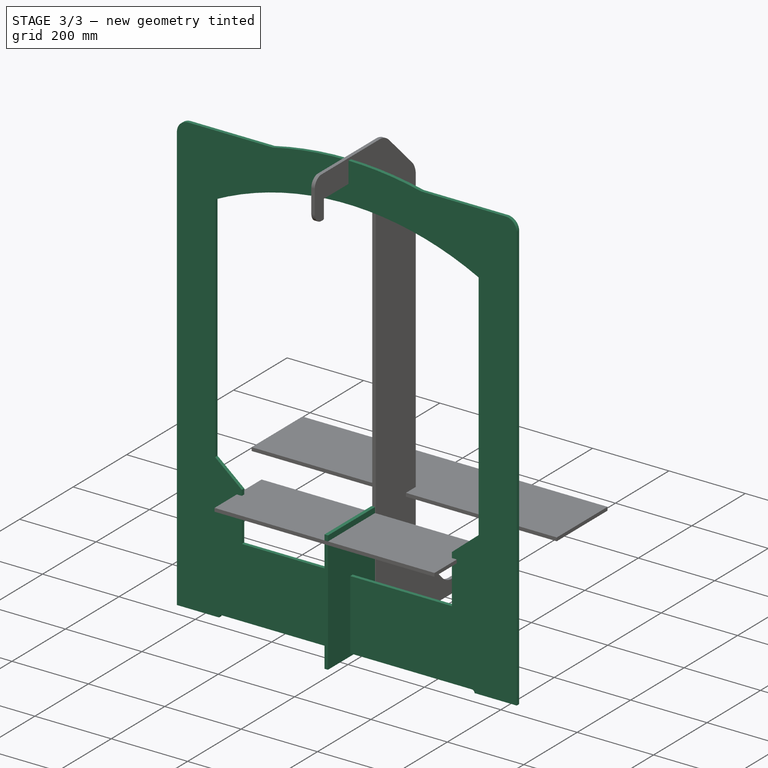
[diagram: stage 3 of 3 — iso view after this stage's code; geometry added in this stage tinted green]
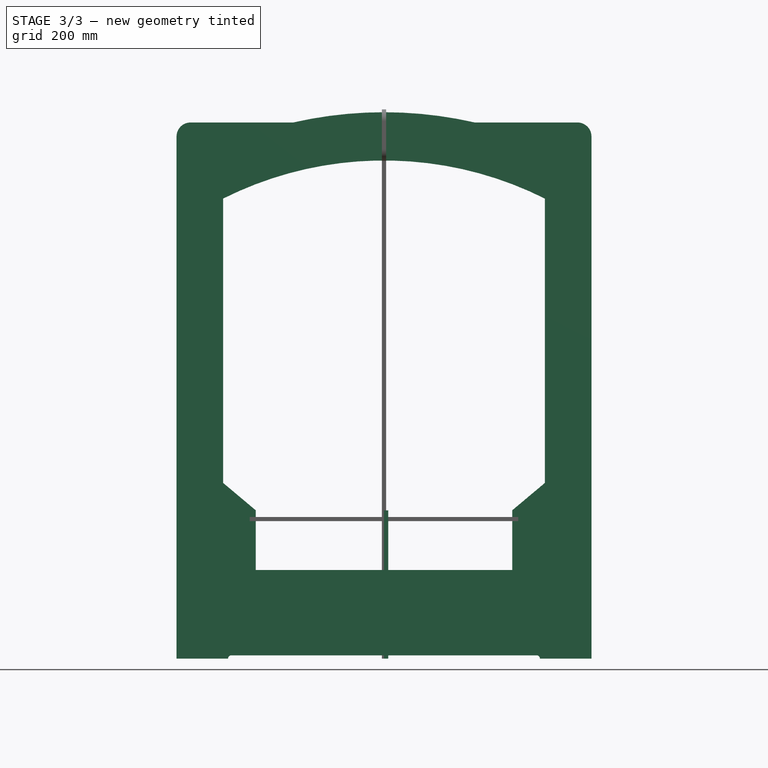
[diagram: stage 3 of 3 — front view after this stage's code; geometry added in this stage tinted green]
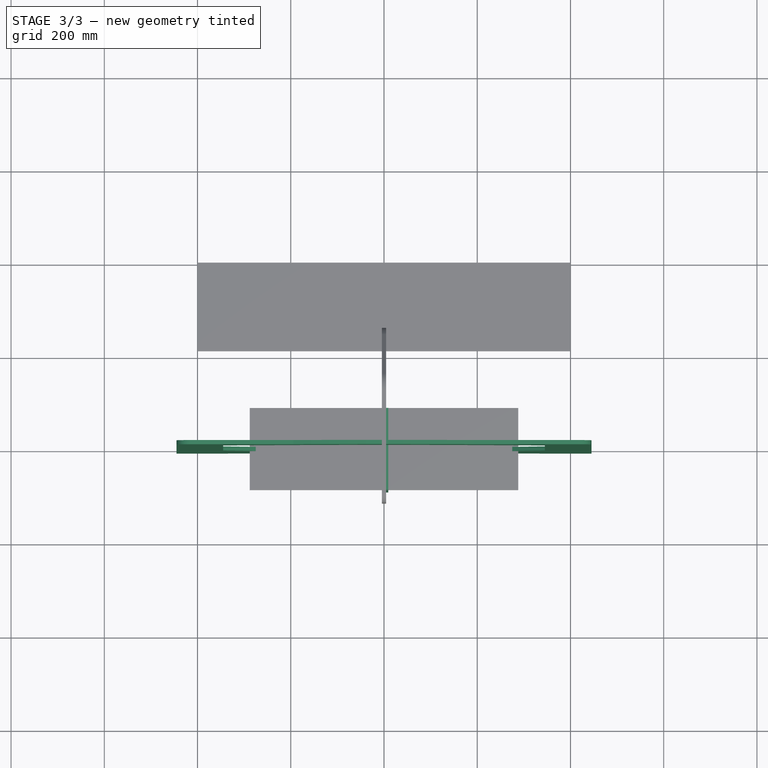
[diagram: stage 3 of 3 — top view after this stage's code; geometry added in this stage tinted green]
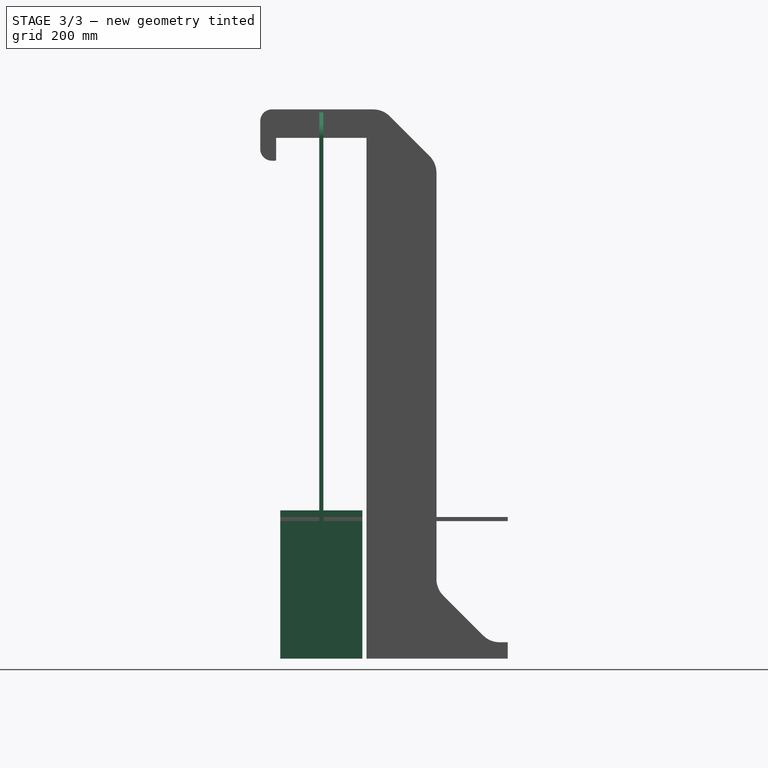
[diagram: stage 3 of 3 — right view after this stage's code; geometry added in this stage tinted green]
FEATURE [PartDesign::Body] Back_Reinforcement
  Group = -> [LCS_0006,Sketch008,Pad007]
  Origin = -> Origin008
  Tip = -> Pad007
FEATURE [App::DocumentObjectGroup] Parts
  Group = -> [Body,Back,Side,Side_Reinforcement,Column_right,Column_left,Lid,Back_Reinforcement]
FEATURE [App::Link] Back_Reinforcement001
  AssemblyType = Asm4EE
  AttachedBy = #LCS_0006
  AttachedTo = Parent Assembly#LCS_Origin
  AttachmentOffset = pos=(0,0,-281.75) rot=(0,0,1;0rad)
  LinkPlacement = pos=(0,0,-281.75) rot=(0,0,1;0rad)
  LinkedObject = -> Back_Reinforcement
  Placement = pos=(0,0,-281.75) rot=(0,0,1;0rad)
FEATURE [PartDesign::CoordinateSystem] LCS_Cradle
  AttacherType = Attacher::AttachEngine3D
  AttachmentOffset = pos=(0,0,-64.25) rot=(0,0,1;0rad)
  MapMode = 2
  Placement = pos=(0,0,-64.25) rot=(0,0,1;0rad)
  Support = -> [X_Axis001]
FEATURE [Spreadsheet::Sheet] Spreadsheet  label="Dimensions"
  cells = A1=Measurements used by more than one piece  ; A2=Column; A3(foot_height)=35; B3=Foot height
FEATURE [App::Link] Base_Assembly
  AssemblyType = Asm4EE
  AttachedBy = #LCS_Origin
  AttachedTo = Parent Assembly#LCS_Cradle
  AttachmentOffset = pos=(6,0,0) rot=(0,0,1;0rad)
  LinkPlacement = pos=(6,0,-64.25) rot=(0,0,1;0rad)
  LinkedObject = -> <external Cradle/Base_Assembly.FCStd>#Model
  Placement = pos=(6,0,-64.25) rot=(0,0,1;0rad)
  expr: Placement = LCS_Cradle.Placement * AttachmentOffset * Base_Assembly#LCS_Origin.Placement ^ -1
  expr: .AttachmentOffset.Base.x = Variables.cradle_horizontal_movement
FEATURE [App::Link] Unnamed  label="Swivel_Assemble001"
  AssemblyType = Asm4EE
  AttachedBy = #LCS_Origin
  AttachedTo = Base_Assembly#LCS_Origin
  LinkPlacement = pos=(6,0,-64.25) rot=(0,0,1;0rad)
  LinkedObject = -> <external Cradle/Swivel_Assembly.FCStd>#Model
  Placement = pos=(6,0,-64.25) rot=(0,0,1;0rad)
  expr: Placement = Base_Assembly.Placement * Base_Assembly#LCS_Origin.Placement * AttachmentOffset * Swivel_Assembly#LCS_Origin.Placement ^ -1
  expr: .AttachmentOffset.Rotation.Angle = Variables.cradle_swivel
FEATURE [App::Link] Wing_Assembly_right
  AssemblyType = Asm4EE
  AttachedBy = #LCS_Origin
  AttachedTo = Unnamed#LCS_Origin
  AttachmentOffset = pos=(-50,0,0) rot=(0,0,1;0rad)
  LinkPlacement = pos=(-44,0,-64.25) rot=(0,0,1;0rad)
  LinkedObject = -> <external Cradle/Wing_Assembly_right.FCStd>#Model
  Placement = pos=(-44,0,-64.25) rot=(0,0,1;0rad)
  expr: .AttachmentOffset.Base.x = Variables.wings_clearance
  expr: Placement = Unnamed.Placement * Swivel_Assembly#LCS_Origin.Placement * AttachmentOffset * Wing_Assembly_right#LCS_Origin.Placement ^ -1
FEATURE [App::Link] Wing_Assembly_left
  AssemblyType = Asm4EE
  AttachedBy = #LCS_Origin
  AttachedTo = Unnamed#LCS_Origin
  AttachmentOffset = pos=(50,0,0) rot=(0,0,1;3.14159rad)
  LinkPlacement = pos=(56,0,-64.25) rot=(0,0,1;3.14159rad)
  LinkedObject = -> <external Cradle/Wing_Assembly_left.FCStd>#Model
  Placement = pos=(56,0,-64.25) rot=(0,0,1;3.14159rad)
  expr: .AttachmentOffset.Base.x = -Variables.wings_clearance
  expr: Placement = Unnamed.Placement * Swivel_Assembly#LCS_Origin.Placement * AttachmentOffset * Wing_Assembly_left#LCS_Origin.Placement ^ -1
FEATURE [App::Part] Model
  Configuration = 0
  Group = -> [LCS_Origin,Constraints,Variables,Sketch,Front,Back001,Side001,Side002,Side_Reinforcement001,Side_Reinforcement002,Column_right001,Column_left001,Lid001,Back_Reinforcement001,LCS_Cradle,Base_Assembly,Unnamed,Wing_Assembly_right,Wing_Assembly_left]
  Origin = -> Origin001
  Type = Assembly4 Model

RESOLVED EXTERNAL PARTS (link-assembly join: the EXTERNAL_REF files above that resolve inside this repo's crawl, each included once):
---- part Cradle/Base_Assembly.FCStd = doc fcstd_b06fd2534706 ----
FCSTD DOCUMENT  (FreeCAD 0.19R)
Label: Base_Assembly
License: Creative Commons Attribution-ShareAlike
LicenseURL: http://creativecommons.org/licenses/by-sa/4.0/
objects: PartDesign::CoordinateSystem×3, App::Link×3, App::DocumentObjectGroup×2, Sketcher::SketchObject×2, PartDesign::Pad×2, PartDesign::Body×2, App::FeaturePython×1, App::Part×1
note: 11 computed .brp shape members not serialized (recipe doc carries the construction recipe); baked Part::Feature solids carry a one-line shape summary decoded from their .brp
EXTERNAL_REF file=../key_dimensions.FCStd obj=Spreadsheet

FEATURE [PartDesign::CoordinateSystem] LCS_Origin
  AttacherType = Attacher::AttachEngine3D
  MapMode = 2
  Support = -> [X_Axis]
FEATURE [App::DocumentObjectGroup] Constraints
FEATURE [App::FeaturePython] Variables  # WARN: FeaturePython — macro-defined, semantics opaque (R4)
FEATURE [PartDesign::CoordinateSystem] LCS_0001
  AttacherType = Attacher::AttachEngine3D
  MapMode = 2
  Support = -> [X_Axis002]
FEATURE [Sketcher::SketchObject] Sketch001
  FullyConstrained = true
  MapMode = 5
  Support = -> [XY_Plane002]
  expr: Constraints[10] = <<key_dimensions>>#<<Dimensions>>.base_cradle_width
  expr: Constraints[9] = <<key_dimensions>>#<<Dimensions>>.base_cradle_depth
  sketch-geometry (4):
    g0: LineSegment StartX=-200 StartY=160 StartZ=0 EndX=200 EndY=160 EndZ=0
    g1: LineSegment StartX=200 StartY=160 StartZ=0 EndX=200 EndY=-160 EndZ=0
    g2: LineSegment StartX=200 StartY=-160 StartZ=0 EndX=-200 EndY=-160 EndZ=0
    g3: LineSegment StartX=-200 StartY=-160 StartZ=0 EndX=-200 EndY=160 EndZ=0
  constraints (11):
    c: Coincident(g0,g1)
    c: Coincident(g1,g2)
    c: Coincident(g2,g3)
    c: Coincident(g3,g0)
    c: Horizontal(g0)
    c: Horizontal(g2)
    c: Vertical(g1)
    c: Vertical(g3)
    c: Symmetric(g1,g0,g-1)
    c: DistanceY(g3,g3) = 320
    c: DistanceX(g2,g2) = 400
FEATURE [PartDesign::Pad] Pad001
  Direction = (1,1,1)
  Length = 9
  Length2 = 100
  Profile = -> Sketch001
  Reversed = true
  Type = 0
  expr: Length = <<key_dimensions>>#<<Dimensions>>.MDF_thick
FEATURE [PartDesign::Body] Base_bottom
  Group = -> [LCS_0001,Sketch001,Pad001]
  Origin = -> Origin002
  Tip = -> Pad001
FEATURE [App::Link] Base_bottom001
  AssemblyType = Asm4EE
  AttachedBy = #LCS_0001
  AttachedTo = Base_top001#LCS_0
  AttachmentOffset = pos=(0,0,-9) rot=(0,0,1;0rad)
  LinkPlacement = pos=(0,0,-9) rot=(0,0,1;0rad)
  LinkedObject = -> Base_bottom
  Placement = pos=(0,0,-9) rot=(0,0,1;0rad)
  expr: .AttachmentOffset.Base.z = -<<key_dimensions>>#<<Dimensions>>.MDF_thick
FEATURE [PartDesign::CoordinateSystem] LCS_0002
  AttacherType = Attacher::AttachEngine3D
  MapMode = 2
  Support = -> [X_Axis003]
FEATURE [Sketcher::SketchObject] Sketch002
  FullyConstrained = false
  MapMode = 5
  Placement = pos=(0,0,0) rot=(1,0,0;1.5708rad)
  Support = -> [XZ_Plane003]
  sketch-geometry (10):
    g0: LineSegment StartX=-175 StartY=0 StartZ=0 EndX=175 EndY=0 EndZ=0
    g1: LineSegment StartX=175 StartY=0 StartZ=0 EndX=175 EndY=-18.1806 EndZ=0
    g2: LineSegment StartX=170.607 StartY=-28.7872 StartZ=0 EndX=161.414 EndY=-37.9795 EndZ=0
    g3: LineSegment StartX=150.808 StartY=-42.3729 StartZ=0 EndX=-150.808 EndY=-42.3729 EndZ=0
    g4: LineSegment StartX=-161.414 StartY=-37.9795 StartZ=0 EndX=-170.607 EndY=-28.7872 EndZ=0
    g5: LineSegment StartX=-175 StartY=-18.1806 StartZ=0 EndX=-175 EndY=0 EndZ=0
    g6: ArcOfCircle CenterX=-160 CenterY=-18.1806 CenterZ=0 NormalX=0 NormalY=0 NormalZ=1 AngleXU=0 Radius=15 StartAngle=3.14159 EndAngle=3.92699
    g7: ArcOfCircle CenterX=-150.808 CenterY=-27.3729 CenterZ=0 NormalX=0 NormalY=0 NormalZ=1 AngleXU=0 Radius=15 StartAngle=3.92699 EndAngle=4.71239
    g8: ArcOfCircle CenterX=150.808 CenterY=-27.3729 CenterZ=0 NormalX=0 NormalY=0 NormalZ=1 AngleXU=0 Radius=15 StartAngle=4.71239 EndAngle=5.49779
    g9: ArcOfCircle CenterX=160 CenterY=-18.1806 CenterZ=0 NormalX=0 NormalY=0 NormalZ=1 AngleXU=0 Radius=15 StartAngle=5.49779 EndAngle=6.28319
  constraints (24):
    c: Horizontal(g0)
    c: Coincident(g0,g1)
    c: Vertical(g1)
    c: Horizontal(g3)
    c: Vertical(g5)
    c: Coincident(g5,g0)
    c: Equal(g2,g4)
    c: Perpendicular(g4,g2)
    c: Angle(g2) = -2.35619
    c: Symmetric(g0,g0,g-1)
    c: DistanceX(g0,g0) = 350
    c: Tangent(g5,g6) = 1.5708
    c: Tangent(g4,g6) = 1.5708
    c: Tangent(g4,g7) = 1.5708
    c: Tangent(g3,g7) = 1.5708
    c: Equal(g6,g7)
    c: Tangent(g3,g8) = 1.5708
    c: Tangent(g2,g8) = 1.5708
    c: Tangent(g2,g9) = 1.5708
    c: Tangent(g1,g9) = 1.5708
    c: Equal(g9,g8)
    c: Radius(g8) = 15
    c: Equal(g7,g8)
    c: Distance(g2) = 13
FEATURE [PartDesign::Pad] Pad002
  Direction = (1,1,1)
  Length = 9
  Length2 = 100
  Midplane = true
  Placement = pos=(0,0,0) rot=(1,0,0;1.5708rad)
  Profile = -> Sketch002
  Type = 0
  expr: Length = <<key_dimensions>>#<<Dimensions>>.MDF_thick
FEATURE [PartDesign::Body] Slider_Fixing
  Group = -> [LCS_0002,Sketch002,Pad002]
  Origin = -> Origin003
  Tip = -> Pad002
FEATURE [App::DocumentObjectGroup] Parts
  Group = -> [Base_bottom,Slider_Fixing]
FEATURE [App::Link] Slider_Fixing001
  AssemblyType = Asm4EE
  AttachedBy = #LCS_0002
  AttachedTo = Parent Assembly#LCS_Origin
  AttachmentOffset = pos=(0,108,-18) rot=(0,0,1;0rad)
  LinkPlacement = pos=(0,108,-18) rot=(0,0,1;0rad)
  LinkedObject = -> Slider_Fixing
  Placement = pos=(0,108,-18) rot=(0,0,1;0rad)
FEATURE [App::Link] Slider_Fixing002
  AssemblyType = Asm4EE
  AttachedBy = #LCS_0002
  AttachedTo = Parent Assembly#LCS_Origin
  AttachmentOffset = pos=(0,-108,-18) rot=(0,0,1;0rad)
  LinkPlacement = pos=(0,-108,-18) rot=(0,0,1;0rad)
  LinkedObject = -> Slider_Fixing
  Placement = pos=(0,-108,-18) rot=(0,0,1;0rad)
FEATURE [App::Part] Model
  Configuration = 0
  Group = -> [LCS_Origin,Constraints,Variables,Base_bottom001,Slider_Fixing001,Slider_Fixing002]
  Origin = -> Origin
  Type = Assembly4 Model
---- part Cradle/Swivel_Assembly.FCStd = doc fcstd_44a15f3124b3 ----
FCSTD DOCUMENT  (FreeCAD 0.19R)
Label: Swivel_Assembly
License: Creative Commons Attribution-ShareAlike
LicenseURL: http://creativecommons.org/licenses/by-sa/4.0/
objects: PartDesign::CoordinateSystem×2, App::DocumentObjectGroup×2, App::FeaturePython×1, Sketcher::SketchObject×1, PartDesign::Pad×1, PartDesign::Body×1, App::Link×1, App::Part×1
note: 6 computed .brp shape members not serialized (recipe doc carries the construction recipe); baked Part::Feature solids carry a one-line shape summary decoded from their .brp
EXTERNAL_REF file=../key_dimensions.FCStd obj=Spreadsheet

FEATURE [PartDesign::CoordinateSystem] LCS_Origin
  AttacherType = Attacher::AttachEngine3D
  MapMode = 2
  Support = -> [X_Axis]
FEATURE [App::DocumentObjectGroup] Constraints
FEATURE [App::FeaturePython] Variables  # WARN: FeaturePython — macro-defined, semantics opaque (R4)
FEATURE [PartDesign::CoordinateSystem] LCS_0
  AttacherType = Attacher::AttachEngine3D
  MapMode = 2
  Support = -> [X_Axis001]
FEATURE [Sketcher::SketchObject] Sketch
  FullyConstrained = true
  MapMode = 5
  Support = -> [XY_Plane001]
  expr: Constraints[10] = <<key_dimensions>>#<<Dimensions>>.base_cradle_width
  expr: Constraints[8] = <<key_dimensions>>#<<Dimensions>>.base_cradle_depth
  sketch-geometry (4):
    g0: LineSegment StartX=-200 StartY=160 StartZ=0 EndX=200 EndY=160 EndZ=0
    g1: LineSegment StartX=200 StartY=160 StartZ=0 EndX=200 EndY=-160 EndZ=0
    g2: LineSegment StartX=200 StartY=-160 StartZ=0 EndX=-200 EndY=-160 EndZ=0
    g3: LineSegment StartX=-200 StartY=-160 StartZ=0 EndX=-200 EndY=160 EndZ=0
  constraints (11):
    c: Coincident(g0,g1)
    c: Coincident(g1,g2)
    c: Coincident(g2,g3)
    c: Coincident(g3,g0)
    c: Horizontal(g0)
    c: Horizontal(g2)
    c: Vertical(g1)
    c: Vertical(g3)
    c: DistanceY(g1,g1) = 320
    c: Symmetric(g1,g0,g-1)
    c: DistanceX(g2,g2) = 400
FEATURE [PartDesign::Pad] Pad
  Direction = (1,1,1)
  Length = 9
  Length2 = 100
  Profile = -> Sketch
  Reversed = true
  Type = 0
  expr: Length = <<key_dimensions>>#<<Dimensions>>.MDF_thick
FEATURE [PartDesign::Body] Base
  Group = -> [LCS_0,Sketch,Pad]
  Origin = -> Origin001
  Tip = -> Pad
FEATURE [App::DocumentObjectGroup] Parts
  Group = -> [Base]
FEATURE [App::Link] Base001
  AssemblyType = Asm4EE
  AttachedBy = #LCS_0
  AttachedTo = Parent Assembly#LCS_Origin
  LinkedObject = -> Base
  expr: Placement = LCS_Origin.Placement * AttachmentOffset * LCS_0.Placement ^ -1
FEATURE [App::Part] Model
  Configuration = 0
  Group = -> [LCS_Origin,Constraints,Variables,Base001]
  Origin = -> Origin
  Type = Assembly4 Model
---- part Cradle/Wing_Assembly_left.FCStd = doc fcstd_ceb8ad0af302 ----
FCSTD DOCUMENT  (FreeCAD 0.19R)
Label: Wing_Assembly_left
License: Creative Commons Attribution-ShareAlike
LicenseURL: http://creativecommons.org/licenses/by-sa/4.0/
objects: App::Link×7, App::DocumentObjectGroup×2, PartDesign::CoordinateSystem×1, App::FeaturePython×1, App::Part×1
note: 1 computed .brp shape members not serialized (recipe doc carries the construction recipe); baked Part::Feature solids carry a one-line shape summary decoded from their .brp
EXTERNAL_REF file=Wing_Assembly_right.FCStd obj=LCS_0
EXTERNAL_REF file=../key_dimensions.FCStd obj=Spreadsheet
EXTERNAL_REF file=Wing_Assembly_right.FCStd obj=Wing_support_A
EXTERNAL_REF file=Wing_Assembly_right.FCStd obj=LCS_0001
EXTERNAL_REF file=Wing_Assembly_right.FCStd obj=Wing_Support_B
EXTERNAL_REF file=Wing_Assembly_right.FCStd obj=LCS_0002
EXTERNAL_REF file=Wing_Assembly_right.FCStd obj=Wing
EXTERNAL_REF file=Wing_Assembly_right.FCStd obj=LCS_0003
EXTERNAL_REF file=Wing_Assembly_right.FCStd obj=Rib

FEATURE [App::DocumentObjectGroup] Parts
FEATURE [PartDesign::CoordinateSystem] LCS_Origin
  AttacherType = Attacher::AttachEngine3D
  MapMode = 2
  Support = -> [X_Axis]
FEATURE [App::DocumentObjectGroup] Constraints
FEATURE [App::FeaturePython] Variables  # WARN: FeaturePython — macro-defined, semantics opaque (R4)
FEATURE [App::Link] Wing_Assembly_right_Wing_support_A  label="Wing_support_A_001"
  AssemblyType = Asm4EE
  AttachedBy = #LCS_0
  AttachedTo = Parent Assembly#LCS_Origin
  AttachmentOffset = pos=(0,140.5,0) rot=(0,0,1;0rad)
  LinkPlacement = pos=(0,140.5,0) rot=(0,0,1;0rad)
  LinkedObject = -> <external Wing_Assembly_right.FCStd>#Wing_support_A
  Placement = pos=(0,140.5,0) rot=(0,0,1;0rad)
  expr: Placement = LCS_Origin.Placement * AttachmentOffset * Wing_Assembly_right#LCS_0.Placement ^ -1
  expr: .AttachmentOffset.Base.y = <<key_dimensions>>#<<Dimensions>>.rail_D
FEATURE [App::Link] Wing_Assembly_right_Wing_support_A_2  label="Wing_support_A_002"
  AssemblyType = Asm4EE
  AttachedBy = #LCS_0
  AttachedTo = Parent Assembly#LCS_Origin
  AttachmentOffset = pos=(0,-140.5,0) rot=(0,0,1;0rad)
  LinkPlacement = pos=(0,-140.5,0) rot=(0,0,1;0rad)
  LinkedObject = -> <external Wing_Assembly_right.FCStd>#Wing_support_A
  Placement = pos=(0,-140.5,0) rot=(0,0,1;0rad)
  expr: Placement = LCS_Origin.Placement * AttachmentOffset * Wing_Assembly_right#LCS_0.Placement ^ -1
  expr: .AttachmentOffset.Base.y = -<<key_dimensions>>#<<Dimensions>>.rail_D
FEATURE [App::Link] Wing_Assembly_right_Wing_Support_B  label="Wing_Support_B_001"
  AssemblyType = Asm4EE
  AttachedBy = #LCS_0001
  AttachedTo = Parent Assembly#LCS_Origin
  AttachmentOffset = pos=(0,65.5,0) rot=(0,0,1;0rad)
  LinkPlacement = pos=(0,65.5,0) rot=(0,0,1;0rad)
  LinkedObject = -> <external Wing_Assembly_right.FCStd>#Wing_Support_B
  Placement = pos=(0,65.5,0) rot=(0,0,1;0rad)
  expr: Placement = LCS_Origin.Placement * AttachmentOffset * Wing_Assembly_right#LCS_0001.Placement ^ -1
  expr: .AttachmentOffset.Base.y = <<key_dimensions>>#<<Dimensions>>.rail_B
FEATURE [App::Link] Wing_Assembly_right_Wing_Support_B_2  label="Wing_Support_B_002"
  AssemblyType = Asm4EE
  AttachedBy = #LCS_0001
  AttachedTo = Parent Assembly#LCS_Origin
  AttachmentOffset = pos=(0,-65.5,0) rot=(0,0,1;0rad)
  LinkPlacement = pos=(0,-65.5,0) rot=(0,0,1;0rad)
  LinkedObject = -> <external Wing_Assembly_right.FCStd>#Wing_Support_B
  Placement = pos=(0,-65.5,0) rot=(0,0,1;0rad)
  expr: Placement = LCS_Origin.Placement * AttachmentOffset * Wing_Assembly_right#LCS_0001.Placement ^ -1
  expr: .AttachmentOffset.Base.y = -<<key_dimensions>>#<<Dimensions>>.rail_B
FEATURE [App::Link] Wing_Assembly_right_Wing  label="Wing_001"
  AssemblyType = Asm4EE
  AttachedBy = #LCS_0002
  AttachedTo = Parent Assembly#LCS_Origin
  AttachmentOffset = pos=(0,0,0) rot=(0,1,0;-0.698132rad)
  LinkPlacement = pos=(0,0,0) rot=(0,1,0;5.58505rad)
  LinkedObject = -> <external Wing_Assembly_right.FCStd>#Wing
  Placement = pos=(0,0,0) rot=(0,1,0;5.58505rad)
  expr: Placement = LCS_Origin.Placement * AttachmentOffset * Wing_Assembly_right#LCS_0002.Placement ^ -1
  expr: .AttachmentOffset.Rotation.Angle = -<<key_dimensions>>#<<Dimensions>>.cradle_tilting
FEATURE [App::Link] Wing_Assembly_right_Rib
  AssemblyType = Asm4EE
  AttachedBy = #LCS_0003
  AttachedTo = Wing_Assembly_right_Wing#LCS_0002
  AttachmentOffset = pos=(150,0,0) rot=(0,0,1;0rad)
  LinkPlacement = pos=(114.907,0,96.4181) rot=(0,1,0;5.58505rad)
  LinkedObject = -> <external Wing_Assembly_right.FCStd>#Rib
  Placement = pos=(114.907,0,96.4181) rot=(0,1,0;5.58505rad)
  expr: Placement = Wing_Assembly_right_Wing.Placement * Wing_Assembly_right#LCS_0002.Placement * AttachmentOffset * Wing_Assembly_right#LCS_0003.Placement ^ -1
FEATURE [App::Link] Wing_Assembly_right_Rib_2
  AssemblyType = Asm4EE
  AttachedBy = #LCS_0003
  AttachedTo = Wing_Assembly_right_Wing#LCS_0002
  AttachmentOffset = pos=(270,0,0) rot=(0,0,1;0rad)
  LinkPlacement = pos=(206.832,0,173.553) rot=(0,1,0;5.58505rad)
  LinkedObject = -> <external Wing_Assembly_right.FCStd>#Rib
  Placement = pos=(206.832,0,173.553) rot=(0,1,0;5.58505rad)
  expr: Placement = Wing_Assembly_right_Wing.Placement * Wing_Assembly_right#LCS_0002.Placement * AttachmentOffset * Wing_Assembly_right#LCS_0003.Placement ^ -1
FEATURE [App::Part] Model
  Configuration = 0
  Group = -> [LCS_Origin,Constraints,Variables,Wing_Assembly_right_Wing_support_A,Wing_Assembly_right_Wing_support_A_2,Wing_Assembly_right_Wing_Support_B,Wing_Assembly_right_Wing_Support_B_2,Wing_Assembly_right_Wing,Wing_Assembly_right_Rib,Wing_Assembly_right_Rib_2]
  Origin = -> Origin
  Type = Assembly4 Model
---- part Cradle/Wing_Assembly_right.FCStd = doc fcstd_13339fdf4e19 ----
FCSTD DOCUMENT  (FreeCAD 0.19R)
Label: Wing_Assembly_right
License: Creative Commons Attribution-ShareAlike
LicenseURL: http://creativecommons.org/licenses/by-sa/4.0/
objects: App::Link×7, PartDesign::CoordinateSystem×5, Sketcher::SketchObject×4, PartDesign::Pad×4, PartDesign::Body×4, App::DocumentObjectGroup×2, App::FeaturePython×1, App::Part×1
note: 21 computed .brp shape members not serialized (recipe doc carries the construction recipe); baked Part::Feature solids carry a one-line shape summary decoded from their .brp
EXTERNAL_REF file=../key_dimensions.FCStd obj=Spreadsheet

FEATURE [PartDesign::CoordinateSystem] LCS_Origin
  AttacherType = Attacher::AttachEngine3D
  MapMode = 2
  Support = -> [X_Axis]
FEATURE [App::DocumentObjectGroup] Constraints
FEATURE [App::FeaturePython] Variables  # WARN: FeaturePython — macro-defined, semantics opaque (R4)
FEATURE [PartDesign::CoordinateSystem] LCS_0
  AttacherType = Attacher::AttachEngine3D
  MapMode = 2
  Support = -> [X_Axis001]
FEATURE [Sketcher::SketchObject] Sketch  label="Wing_Support_A_Sketch"
  FullyConstrained = true
  MapMode = 5
  Placement = pos=(0,0,0) rot=(1,0,0;1.5708rad)
  Support = -> [XZ_Plane001]
  expr: Constraints[13] = <<key_dimensions>>#<<Dimensions>>.acrylic_width
  expr: Constraints[19] = <<key_dimensions>>#<<Dimensions>>.MDF_thick * 2
  expr: Constraints[18] = <<key_dimensions>>#<<Dimensions>>.MDF_thick
  expr: Constraints[9] = <<key_dimensions>>#<<Dimensions>>.cradle_tilting
  sketch-geometry (10):
    g0: LineSegment StartX=0 StartY=-9 StartZ=0 EndX=0 EndY=0 EndZ=0
    g1: LineSegment StartX=0 StartY=0 StartZ=0 EndX=252.795 EndY=212.12 EndZ=0
    g2: LineSegment StartX=252.795 StartY=212.12 StartZ=0 EndX=264.365 EndY=198.331 EndZ=0
    g3: LineSegment StartX=264.365 StartY=198.331 StartZ=0 EndX=264.365 EndY=144.809 EndZ=0
    g4: LineSegment StartX=264.365 StartY=144.809 StartZ=0 EndX=198 EndY=89.1227 EndZ=0
    g5: LineSegment StartX=198 StartY=89.1227 StartZ=0 EndX=198 EndY=0 EndZ=0
    g6: LineSegment StartX=175 StartY=-9 StartZ=0 EndX=0 EndY=-9 EndZ=0
    g7: LineSegment StartX=160.076 StartY=134.319 StartZ=0 EndX=198 EndY=89.1227 EndZ=0
    g8: LineSegment StartX=175 StartY=-9 StartZ=0 EndX=175 EndY=0 EndZ=0
    g9: LineSegment StartX=175 StartY=0 StartZ=0 EndX=198 EndY=0 EndZ=0
  constraints (30):
    c: Coincident(g0,g1)
    c: Coincident(g1,g2)
    c: Coincident(g2,g3)
    c: Vertical(g3)
    c: Coincident(g3,g4)
    c: Coincident(g4,g5)
    c: Vertical(g5)
    c: Coincident(g6,g0)
    c: Horizontal(g6)
    c: Angle(g1) = 0.698132
    c: Perpendicular(g1,g2)
    c: Parallel(g4,g1)
    c: Vertical(g0)
    c: Distance(g1) = 330
    c: PointOnObject(g7,g1)
    c: PointOnObject(g7,g4)
    c: Perpendicular(g1,g7)
    c: Distance(g7) = 59
    c: DistanceY(g0,g0) = 9
    c: Distance(g2) = 18
    c: Coincident(g0,g-1)
    c: PointOnObject(g4,g7)
    c: Coincident(g8,g9)
    c: Horizontal(g9)
    c: Coincident(g6,g8)
    c: Coincident(g5,g9)
    c: PointOnObject(g0,g9)
    c: DistanceX(g6,g6) = 175
    c: Vertical(g8)
    c: DistanceX(g8,g4) = 23
FEATURE [PartDesign::CoordinateSystem] LCS_0001
  AttacherType = Attacher::AttachEngine3D
  MapMode = 2
  Support = -> [X_Axis002]
FEATURE [Sketcher::SketchObject] Sketch001  label="Wing_Support_B_Sketch"
  FullyConstrained = true
  MapMode = 5
  Placement = pos=(0,0,0) rot=(1,0,0;1.5708rad)
  Support = -> [XZ_Plane002]
  expr: Constraints[11] = <<key_dimensions>>#<<Dimensions>>.acrylic_width
  expr: Constraints[17] = <<key_dimensions>>#<<Dimensions>>.MDF_thick * 2
  expr: Constraints[16] = <<key_dimensions>>#<<Dimensions>>.MDF_thick
  expr: Constraints[7] = <<key_dimensions>>#<<Dimensions>>.cradle_tilting
  sketch-geometry (9):
    g0: LineSegment StartX=0 StartY=-9 StartZ=0 EndX=0 EndY=0 EndZ=0
    g1: LineSegment StartX=0 StartY=0 StartZ=0 EndX=252.795 EndY=212.12 EndZ=0
    g2: LineSegment StartX=252.795 StartY=212.12 StartZ=0 EndX=264.365 EndY=198.331 EndZ=0
    g3: LineSegment StartX=264.365 StartY=198.331 StartZ=0 EndX=264.365 EndY=144.809 EndZ=0
    g4: LineSegment StartX=264.365 StartY=144.809 StartZ=0 EndX=192.861 EndY=84.8102 EndZ=0
    g5: LineSegment StartX=175 StartY=-9 StartZ=0 EndX=0 EndY=-9 EndZ=0
    g6: LineSegment StartX=154.936 StartY=130.007 StartZ=0 EndX=192.861 EndY=84.8102 EndZ=0
    g7: LineSegment StartX=175 StartY=-9 StartZ=0 EndX=175 EndY=46.508 EndZ=0
    g8: ArcOfCircle CenterX=225 CenterY=46.508 CenterZ=0 NormalX=0 NormalY=0 NormalZ=1 AngleXU=0 Radius=50 StartAngle=2.26893 EndAngle=3.14159
  constraints (26):
    c: Coincident(g0,g1)
    c: Coincident(g1,g2)
    c: Coincident(g2,g3)
    c: Vertical(g3)
    c: Coincident(g3,g4)
    c: Coincident(g5,g0)
    c: Horizontal(g5)
    c: Angle(g1) = 0.698132
    c: Perpendicular(g1,g2)
    c: Parallel(g4,g1)
    c: Vertical(g0)
    c: Distance(g1) = 330
    c: PointOnObject(g6,g1)
    c: PointOnObject(g6,g4)
    c: Perpendicular(g1,g6)
    c: Distance(g6) = 59
    c: DistanceY(g0,g0) = 9
    c: Distance(g2) = 18
    c: Coincident(g0,g-1)
    c: PointOnObject(g4,g6)
    c: Coincident(g5,g7)
    c: DistanceX(g5,g5) = 175
    c: Vertical(g7)
    c: Tangent(g8,g4) = -1.5708
    c: Tangent(g8,g7) = 1.5708
    c: Radius(g8) = 50
FEATURE [PartDesign::Pad] Pad
  Direction = (1,1,1)
  Length = 9
  Length2 = 100
  Midplane = true
  Placement = pos=(0,0,0) rot=(1,0,0;1.5708rad)
  Profile = -> Sketch
  Type = 0
  expr: Length = <<key_dimensions>>#<<Dimensions>>.MDF_thick
FEATURE [PartDesign::Body] Wing_support_A
  Group = -> [LCS_0,Sketch,Pad]
  Origin = -> Origin001
  Tip = -> Pad
FEATURE [PartDesign::Pad] Pad001
  Direction = (1,1,1)
  Length = 9
  Length2 = 100
  Midplane = true
  Placement = pos=(0,0,0) rot=(1,0,0;1.5708rad)
  Profile = -> Sketch001
  Type = 0
  expr: Length = <<key_dimensions>>#<<Dimensions>>.MDF_thick
FEATURE [PartDesign::Body] Wing_Support_B
  Group = -> [LCS_0001,Sketch001,Pad001]
  Origin = -> Origin002
  Tip = -> Pad001
FEATURE [App::Link] Wing_support_A001
  AssemblyType = Asm4EE
  AttachedBy = #LCS_0
  AttachedTo = Parent Assembly#LCS_Origin
  AttachmentOffset = pos=(0,115.5,0) rot=(0,0,1;0rad)
  LinkPlacement = pos=(0,115.5,0) rot=(0,0,1;0rad)
  LinkedObject = -> Wing_support_A
  Placement = pos=(0,115.5,0) rot=(0,0,1;0rad)
  expr: Placement = LCS_Origin.Placement * AttachmentOffset * LCS_0.Placement ^ -1
  expr: .AttachmentOffset.Base.y = key_dimensions#<<Dimensions>>.rail_C
FEATURE [App::Link] Wing_support_A002
  AssemblyType = Asm4EE
  AttachedBy = #LCS_0
  AttachedTo = Parent Assembly#LCS_Origin
  AttachmentOffset = pos=(0,-115.5,0) rot=(0,0,1;0rad)
  LinkPlacement = pos=(0,-115.5,0) rot=(0,0,1;0rad)
  LinkedObject = -> Wing_support_A
  Placement = pos=(0,-115.5,0) rot=(0,0,1;0rad)
  expr: Placement = LCS_Origin.Placement * AttachmentOffset * LCS_0.Placement ^ -1
  expr: .AttachmentOffset.Base.y = -key_dimensions#<<Dimensions>>.rail_C
FEATURE [App::Link] Wing_Support_B001
  AssemblyType = Asm4EE
  AttachedBy = #LCS_0001
  AttachedTo = Parent Assembly#LCS_Origin
  AttachmentOffset = pos=(0,38.5,0) rot=(0,0,1;0rad)
  LinkPlacement = pos=(0,38.5,0) rot=(0,0,1;0rad)
  LinkedObject = -> Wing_Support_B
  Placement = pos=(0,38.5,0) rot=(0,0,1;0rad)
  expr: Placement = LCS_Origin.Placement * AttachmentOffset * LCS_0001.Placement ^ -1
  expr: .AttachmentOffset.Base.y = key_dimensions#<<Dimensions>>.rail_A
FEATURE [App::Link] Wing_Support_B002
  AssemblyType = Asm4EE
  AttachedBy = #LCS_0001
  AttachedTo = Parent Assembly#LCS_Origin
  AttachmentOffset = pos=(0,-38.5,0) rot=(0,0,1;0rad)
  LinkPlacement = pos=(0,-38.5,0) rot=(0,0,1;0rad)
  LinkedObject = -> Wing_Support_B
  Placement = pos=(0,-38.5,0) rot=(0,0,1;0rad)
  expr: Placement = LCS_Origin.Placement * AttachmentOffset * LCS_0001.Placement ^ -1
  expr: .AttachmentOffset.Base.y = -key_dimensions#<<Dimensions>>.rail_A
FEATURE [PartDesign::CoordinateSystem] LCS_0002
  AttacherType = Attacher::AttachEngine3D
  MapMode = 2
  Support = -> [X_Axis003]
FEATURE [Sketcher::SketchObject] Sketch002
  FullyConstrained = true
  MapMode = 5
  Support = -> [XY_Plane003]
  expr: Constraints[11] = <<key_dimensions>>#<<Dimensions>>.wing_depth
  expr: Constraints[15] = <<key_dimensions>>#<<Dimensions>>.wing_length
  expr: Constraints[16] = <<key_dimensions>>#<<Dimensions>>.acrylic_width
  expr: Constraints[22] = <<key_dimensions>>#<<Dimensions>>.cradle_rounded
  sketch-geometry (9):
    g0: LineSegment StartX=115 StartY=160 StartZ=0 EndX=315 EndY=160 EndZ=0
    g1: LineSegment StartX=330 StartY=145 StartZ=0 EndX=330 EndY=-145 EndZ=0
    g2: LineSegment StartX=315 StartY=-160 StartZ=0 EndX=115 EndY=-160 EndZ=0
    g3: LineSegment StartX=115 StartY=-160 StartZ=0 EndX=115 EndY=160 EndZ=0
    g4: GeomPoint X=115 Y=0 Z=0
    g5: LineSegment StartX=315 StartY=160 StartZ=0 EndX=315 EndY=-160 EndZ=0
    g6: LineSegment StartX=115 StartY=145 StartZ=0 EndX=330 EndY=145 EndZ=0
    g7: ArcOfCircle CenterX=315 CenterY=145 CenterZ=0 NormalX=0 NormalY=0 NormalZ=1 AngleXU=0 Radius=15 StartAngle=4e-16 EndAngle=1.5708
    g8: ArcOfCircle CenterX=315 CenterY=-145 CenterZ=0 NormalX=0 NormalY=0 NormalZ=1 AngleXU=0 Radius=15 StartAngle=4.71239 EndAngle=6.28319
  constraints (25):
    c: Coincident(g2,g3)
    c: Coincident(g3,g0)
    c: Horizontal(g0)
    c: Horizontal(g2)
    c: Vertical(g1)
    c: Vertical(g3)
    c: PointOnObject(g4,g-1)
    c: Symmetric(g2,g0,g4)
    c: PointOnObject(g5,g0)
    c: PointOnObject(g5,g2)
    c: Vertical(g5)
    c: DistanceY(g5,g5) = 320
    c: PointOnObject(g6,g3)
    c: PointOnObject(g6,g1)
    c: Horizontal(g6)
    c: DistanceX(g6,g6) = 215
    c: DistanceX(g-1,g6) = 330
    c: Tangent(g0,g7) = 1.5708
    c: Tangent(g1,g7) = 1.5708
    c: Tangent(g2,g8) = 1.5708
    c: Tangent(g1,g8) = 1.5708
    c: Equal(g8,g7)
    c: Radius(g7) = 15
    c: PointOnObject(g1,g6)
    c: PointOnObject(g0,g5)
FEATURE [PartDesign::Pad] Pad002
  Direction = (1,1,1)
  Length = 9
  Length2 = 100
  Profile = -> Sketch002
  Reversed = true
  Type = 0
  expr: Length = <<key_dimensions>>#<<Dimensions>>.MDF_thick
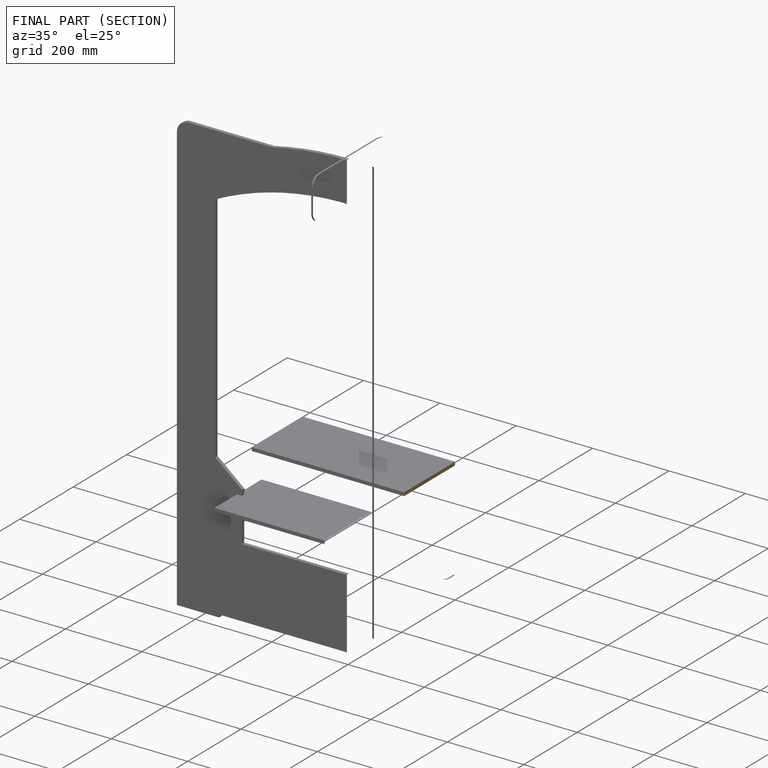
[diagram: finished part — half-section view (interior)]
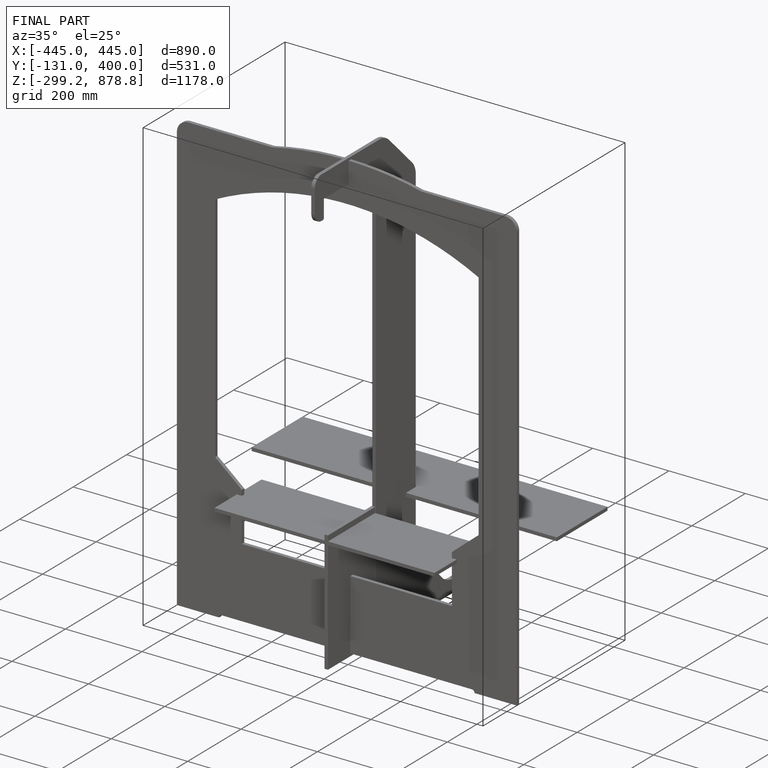
[diagram: finished part — iso view with bounding-box wireframe]
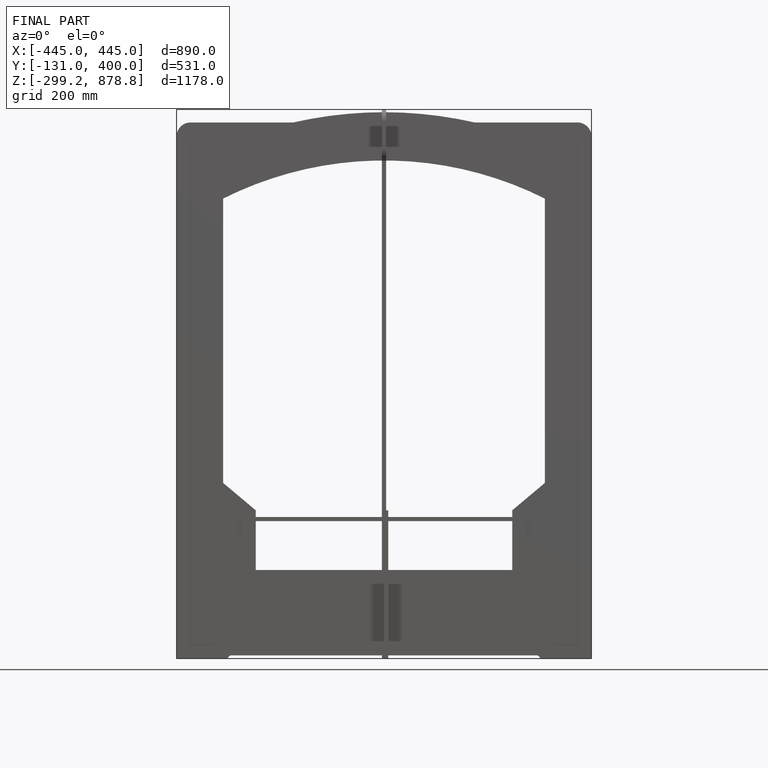
[diagram: finished part — front view with bounding-box wireframe]
